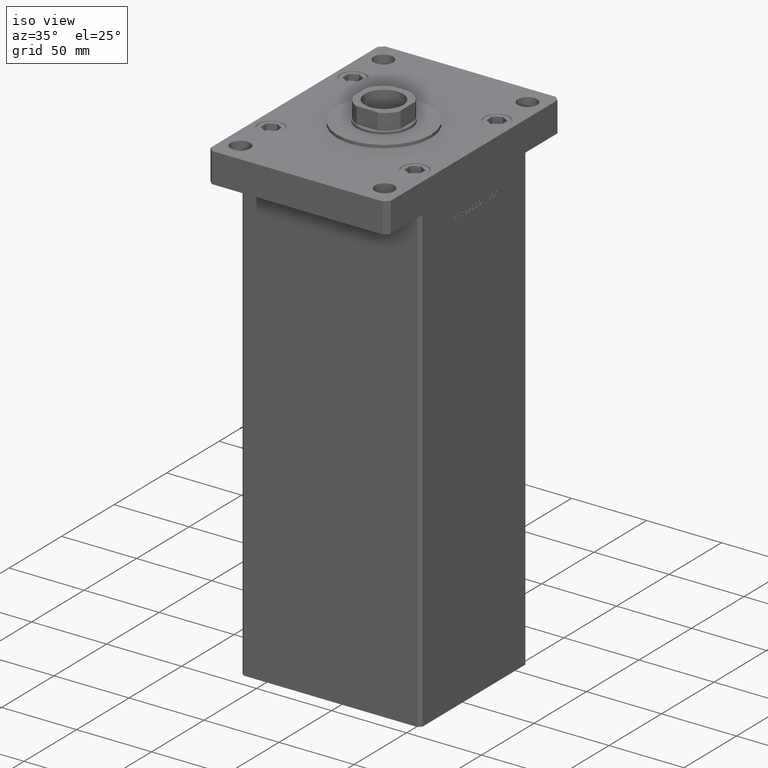
[diagram: clean part render]
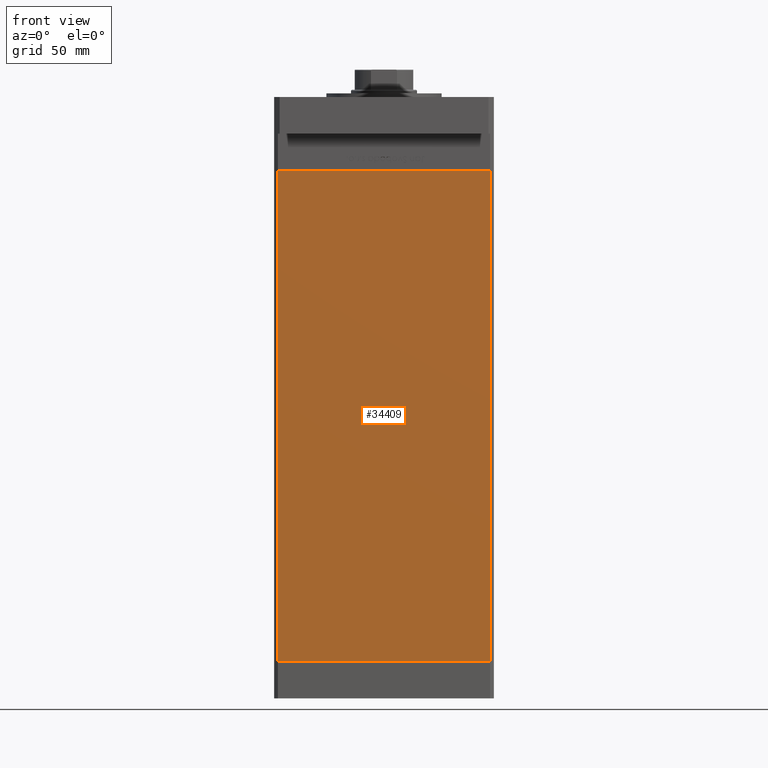
[diagram: tour spotlight — one face highlighted and labeled with its STEP entity id]
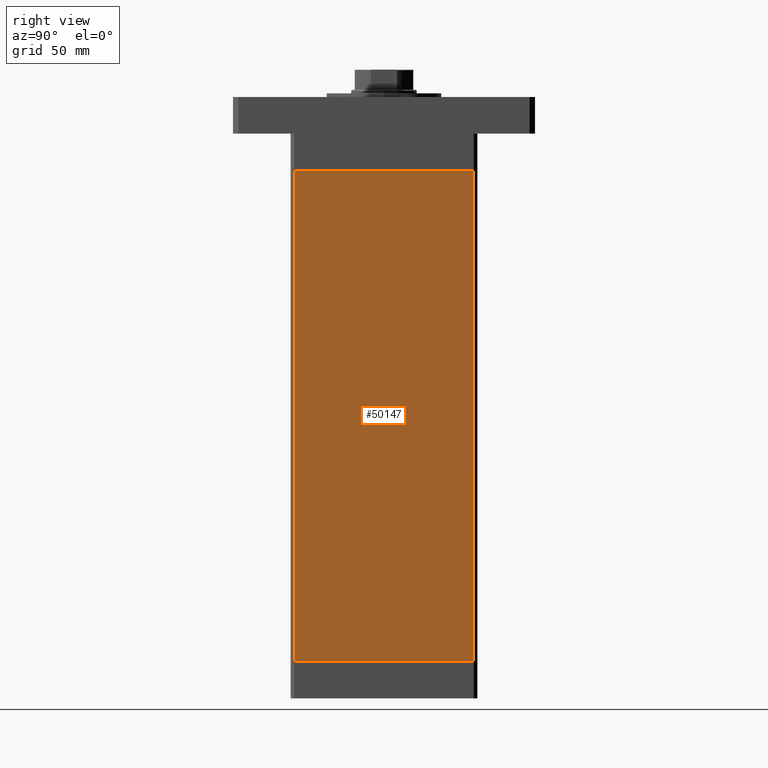
[diagram: tour spotlight — one face highlighted and labeled with its STEP entity id]
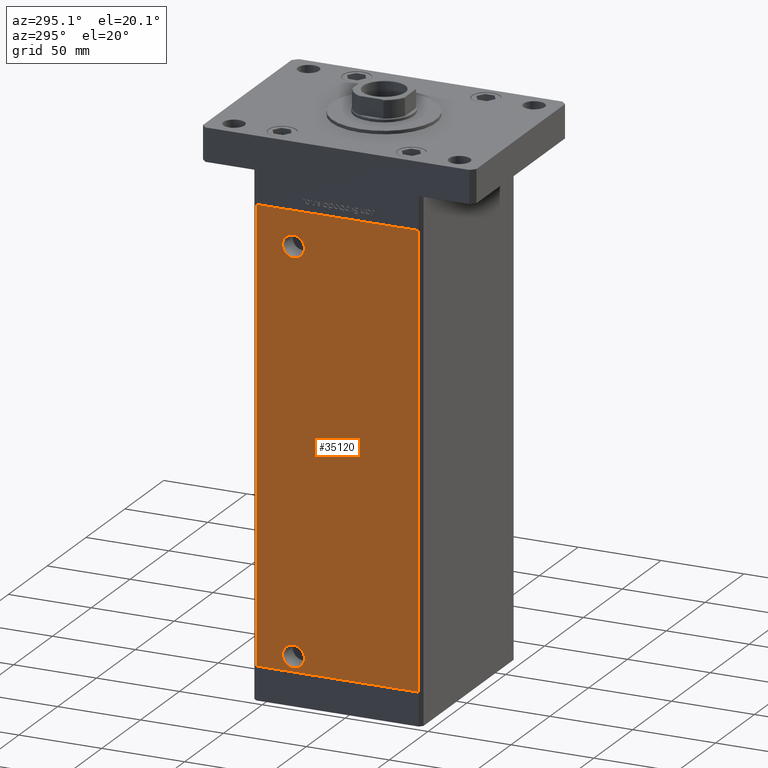
[diagram: tour spotlight — one face highlighted and labeled with its STEP entity id]
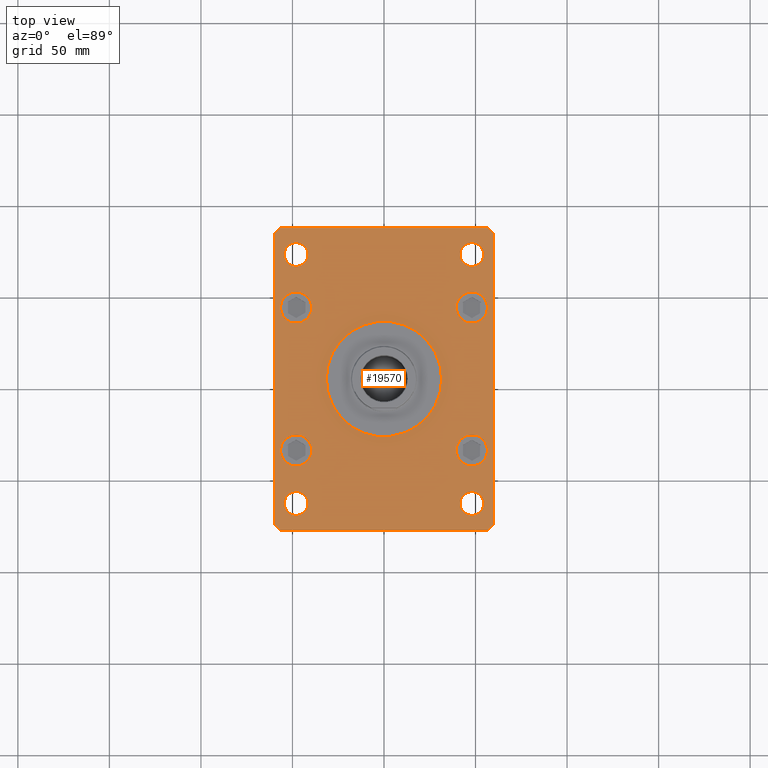
[diagram: tour spotlight — one face highlighted and labeled with its STEP entity id]
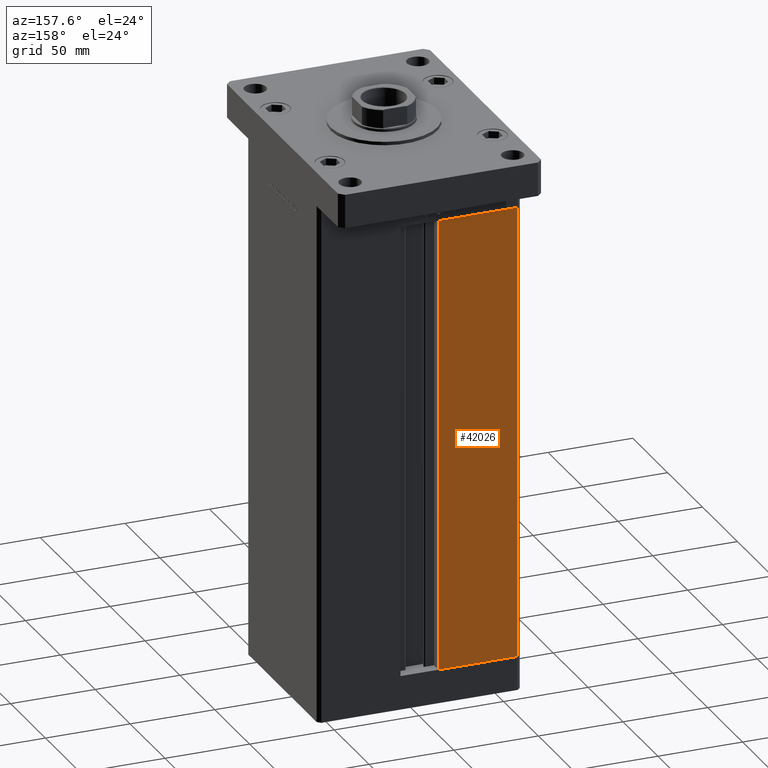
[diagram: tour spotlight — one face highlighted and labeled with its STEP entity id]
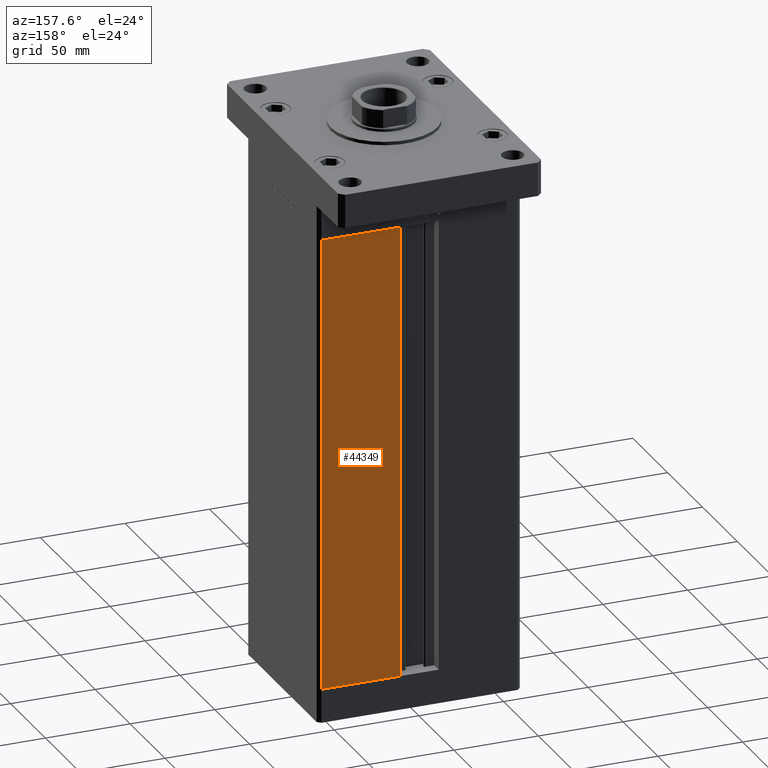
[diagram: tour spotlight — one face highlighted and labeled with its STEP entity id]
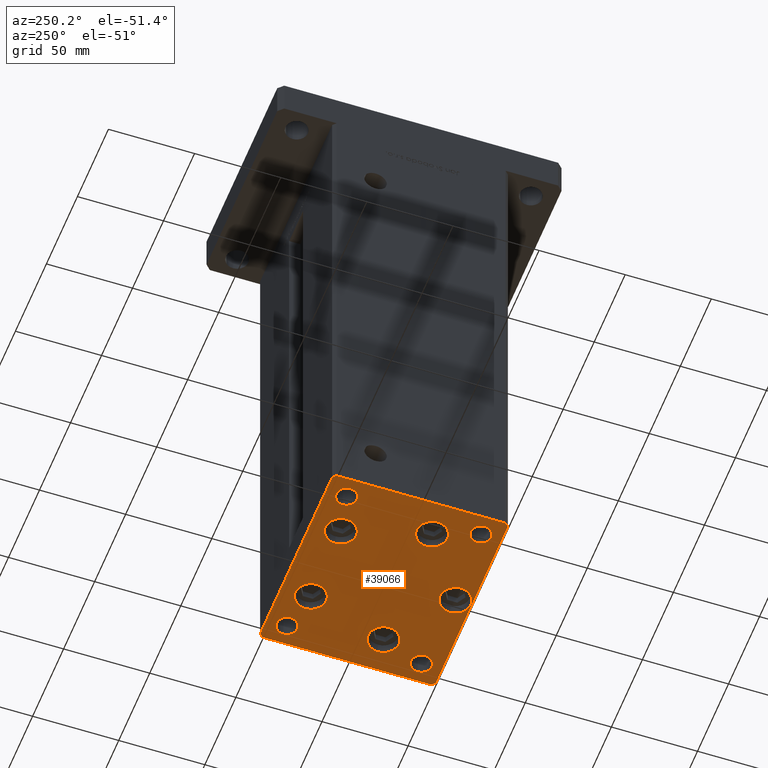
[diagram: tour spotlight — one face highlighted and labeled with its STEP entity id]
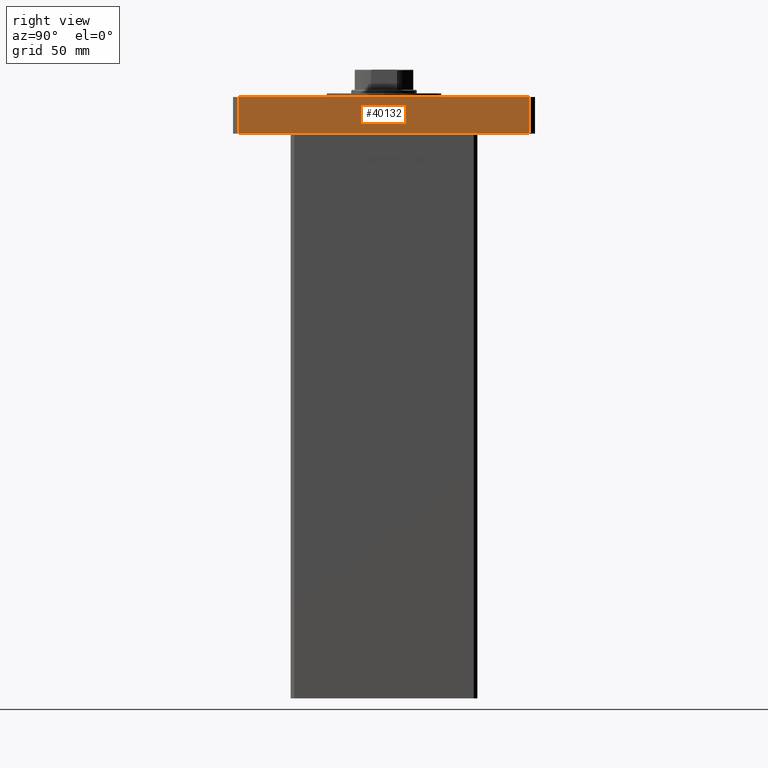
[diagram: tour spotlight — one face highlighted and labeled with its STEP entity id]
A machine part: a face-by-face anatomy tour. The part has 1311 B-rep faces; the first image is the clean iso view, then the 8 largest visible faces are spotlighted one at a time (largest first), each with its STEP entity span.

Face 1 — front view, entity #34409. In plain terms, the highlighted planar face has unit normal (0, 1, 0).
Definition (entity closure, byte-faithful):
#929 = EDGE_CURVE ( 'NONE', #19990, #13158, #34837, .T. ) ;
#10093 = DIRECTION ( 'NONE',  ( 1.000000000000000000, 0.000000000000000000, 0.000000000000000000 ) ) ;
#10351 = CARTESIAN_POINT ( 'NONE',  ( -57.99999999999997868, -51.00000000000000711, 0.000000000000000000 ) ) ;
#10465 = VERTEX_POINT ( 'NONE', #25866 ) ;
#13158 = VERTEX_POINT ( 'NONE', #40665 ) ;
#15494 = VECTOR ( 'NONE', #37706, 1000.000000000000000 ) ;
#17044 = VECTOR ( 'NONE', #33640, 1000.000000000000000 ) ;
#17133 = DIRECTION ( 'NONE',  ( 0.000000000000000000, -0.000000000000000000, 1.000000000000000000 ) ) ;
#17309 = CARTESIAN_POINT ( 'NONE',  ( 57.99999999999997868, -51.00000000000000711, 268.5000000000000000 ) ) ;
#18038 = VECTOR ( 'NONE', #46679, 1000.000000000000000 ) ;
#18613 = CARTESIAN_POINT ( 'NONE',  ( -57.99999999999997868, -51.00000000000000711, 268.5000000000000000 ) ) ;
#19340 = ORIENTED_EDGE ( 'NONE', *, *, #929, .T. ) ;
#19990 = VERTEX_POINT ( 'NONE', #27725 ) ;
#20451 = ORIENTED_EDGE ( 'NONE', *, *, #20453, .F. ) ;
#20453 = EDGE_CURVE ( 'NONE', #27574, #13158, #46185, .T. ) ;
#20525 = ORIENTED_EDGE ( 'NONE', *, *, #22177, .F. ) ;
#20949 = PLANE ( 'NONE',  #33879 ) ;
#21423 = CARTESIAN_POINT ( 'NONE',  ( 57.99999999999997868, -51.00000000000000711, 268.5000000000000000 ) ) ;
#22177 = EDGE_CURVE ( 'NONE', #10465, #27574, #51027, .T. ) ;
#23550 = EDGE_CURVE ( 'NONE', #10465, #19990, #37431, .T. ) ;
#24340 = EDGE_LOOP ( 'NONE', ( #19340, #20451, #20525, #35387 ) ) ;
#24401 = VECTOR ( 'NONE', #10093, 1000.000000000000000 ) ;
#25551 = FACE_OUTER_BOUND ( 'NONE', #24340, .T. ) ;
#25866 = CARTESIAN_POINT ( 'NONE',  ( -57.99999999999997868, -51.00000000000000711, 268.5000000000000000 ) ) ;
#27574 = VERTEX_POINT ( 'NONE', #21423 ) ;
#27725 = CARTESIAN_POINT ( 'NONE',  ( -57.99999999999997868, -51.00000000000000711, 0.000000000000000000 ) ) ;
#33640 = DIRECTION ( 'NONE',  ( -0.000000000000000000, -0.000000000000000000, -1.000000000000000000 ) ) ;
#33879 = AXIS2_PLACEMENT_3D ( 'NONE', #50892, #50092, #17133 ) ;
#34409 = ADVANCED_FACE ( 'NONE', ( #25551 ), #20949, .F. ) ;
#34837 = LINE ( 'NONE', #10351, #24401 ) ;
#35387 = ORIENTED_EDGE ( 'NONE', *, *, #23550, .T. ) ;
#37431 = LINE ( 'NONE', #40522, #15494 ) ;
#37706 = DIRECTION ( 'NONE',  ( -0.000000000000000000, -0.000000000000000000, -1.000000000000000000 ) ) ;
#40522 = CARTESIAN_POINT ( 'NONE',  ( -57.99999999999997868, -51.00000000000000711, 268.5000000000000000 ) ) ;
#40665 = CARTESIAN_POINT ( 'NONE',  ( 57.99999999999997868, -51.00000000000000711, 0.000000000000000000 ) ) ;
#46185 = LINE ( 'NONE', #17309, #17044 ) ;
#46679 = DIRECTION ( 'NONE',  ( 1.000000000000000000, 0.000000000000000000, 0.000000000000000000 ) ) ;
#50092 = DIRECTION ( 'NONE',  ( 0.000000000000000000, 1.000000000000000000, 0.000000000000000000 ) ) ;
#50892 = CARTESIAN_POINT ( 'NONE',  ( -57.99999999999997868, -51.00000000000000711, 268.5000000000000000 ) ) ;
#51027 = LINE ( 'NONE', #18613, #18038 ) ;

Face 2 — right view, entity #50147. In plain terms, the highlighted planar face has unit normal (1, -0, 0).
Definition (entity closure, byte-faithful):
#1686 = VECTOR ( 'NONE', #32620, 1000.000000000000000 ) ;
#1807 = FACE_OUTER_BOUND ( 'NONE', #8026, .T. ) ;
#5684 = ORIENTED_EDGE ( 'NONE', *, *, #17217, .F. ) ;
#5728 = ORIENTED_EDGE ( 'NONE', *, *, #28248, .T. ) ;
#6168 = DIRECTION ( 'NONE',  ( 1.000000000000000000, -2.832201593431521726E-16, 0.000000000000000000 ) ) ;
#6521 = LINE ( 'NONE', #23096, #1686 ) ;
#8026 = EDGE_LOOP ( 'NONE', ( #17170, #5684, #5728, #25457 ) ) ;
#12484 = VECTOR ( 'NONE', #13351, 1000.000000000000000 ) ;
#13351 = DIRECTION ( 'NONE',  ( -0.000000000000000000, -0.000000000000000000, -1.000000000000000000 ) ) ;
#17170 = ORIENTED_EDGE ( 'NONE', *, *, #31258, .F. ) ;
#17217 = EDGE_CURVE ( 'NONE', #49131, #27423, #17802, .T. ) ;
#17802 = LINE ( 'NONE', #38475, #22169 ) ;
#18404 = PLANE ( 'NONE',  #44751 ) ;
#18509 = LINE ( 'NONE', #51737, #12484 ) ;
#22169 = VECTOR ( 'NONE', #50223, 1000.000000000000000 ) ;
#22744 = DIRECTION ( 'NONE',  ( 2.832201593431521726E-16, 1.000000000000000000, 0.000000000000000000 ) ) ;
#23096 = CARTESIAN_POINT ( 'NONE',  ( 60.00000000000001421, 49.00000000000000000, 0.000000000000000000 ) ) ;
#24566 = CARTESIAN_POINT ( 'NONE',  ( 59.99999999999998579, -49.00000000000000000, 0.000000000000000000 ) ) ;
#24830 = CARTESIAN_POINT ( 'NONE',  ( 60.00000000000001421, 49.00000000000000000, 268.5000000000000000 ) ) ;
#25457 = ORIENTED_EDGE ( 'NONE', *, *, #44289, .T. ) ;
#27423 = VERTEX_POINT ( 'NONE', #44081 ) ;
#28248 = EDGE_CURVE ( 'NONE', #49131, #29817, #46858, .T. ) ;
#29817 = VERTEX_POINT ( 'NONE', #47818 ) ;
#31258 = EDGE_CURVE ( 'NONE', #27423, #49136, #6521, .T. ) ;
#32152 = VECTOR ( 'NONE', #43026, 1000.000000000000000 ) ;
#32620 = DIRECTION ( 'NONE',  ( -2.832201593431521726E-16, -1.000000000000000000, 0.000000000000000000 ) ) ;
#33924 = CARTESIAN_POINT ( 'NONE',  ( 60.00000000000001421, 49.00000000000000000, 268.5000000000000000 ) ) ;
#38475 = CARTESIAN_POINT ( 'NONE',  ( 60.00000000000001421, 49.00000000000000000, 268.5000000000000000 ) ) ;
#43026 = DIRECTION ( 'NONE',  ( -2.832201593431521726E-16, -1.000000000000000000, 0.000000000000000000 ) ) ;
#44081 = CARTESIAN_POINT ( 'NONE',  ( 60.00000000000001421, 49.00000000000000000, 0.000000000000000000 ) ) ;
#44289 = EDGE_CURVE ( 'NONE', #29817, #49136, #18509, .T. ) ;
#44751 = AXIS2_PLACEMENT_3D ( 'NONE', #33924, #6168, #22744 ) ;
#46858 = LINE ( 'NONE', #50946, #32152 ) ;
#47818 = CARTESIAN_POINT ( 'NONE',  ( 59.99999999999998579, -49.00000000000000000, 268.5000000000000000 ) ) ;
#49131 = VERTEX_POINT ( 'NONE', #24830 ) ;
#49136 = VERTEX_POINT ( 'NONE', #24566 ) ;
#50147 = ADVANCED_FACE ( 'NONE', ( #1807 ), #18404, .T. ) ;
#50223 = DIRECTION ( 'NONE',  ( -0.000000000000000000, -0.000000000000000000, -1.000000000000000000 ) ) ;
#50946 = CARTESIAN_POINT ( 'NONE',  ( 60.00000000000001421, 49.00000000000000000, 268.5000000000000000 ) ) ;
#51737 = CARTESIAN_POINT ( 'NONE',  ( 59.99999999999998579, -49.00000000000000000, 268.5000000000000000 ) ) ;

Face 3 — auxiliary view, entity #35120. In plain terms, the highlighted planar face has unit normal (1, 0, 0).
Definition (entity closure, byte-faithful):
#84 = CARTESIAN_POINT ( 'NONE',  ( -60.00000000000001421, 49.00000000000000000, 268.5000000000000000 ) ) ;
#561 = VERTEX_POINT ( 'NONE', #30540 ) ;
#2476 = CIRCLE ( 'NONE', #48578, 6.580000000000002736 ) ;
#3036 = PLANE ( 'NONE',  #7875 ) ;
#3170 = DIRECTION ( 'NONE',  ( -1.000000000000000000, -2.275047181608927644E-16, 0.000000000000000000 ) ) ;
#5656 = DIRECTION ( 'NONE',  ( -1.000000000000000000, -2.275047181608927644E-16, 0.000000000000000000 ) ) ;
#6930 = EDGE_CURVE ( 'NONE', #561, #45726, #28827, .T. ) ;
#7875 = AXIS2_PLACEMENT_3D ( 'NONE', #37278, #28324, #44949 ) ;
#8040 = LINE ( 'NONE', #45603, #17354 ) ;
#8308 = DIRECTION ( 'NONE',  ( 2.832201593431521726E-16, -1.000000000000000000, 0.000000000000000000 ) ) ;
#10068 = CARTESIAN_POINT ( 'NONE',  ( -60.00000000000001421, 49.00000000000000000, 268.5000000000000000 ) ) ;
#11214 = VECTOR ( 'NONE', #21437, 1000.000000000000000 ) ;
#11452 = FACE_OUTER_BOUND ( 'NONE', #21562, .T. ) ;
#13568 = CARTESIAN_POINT ( 'NONE',  ( -60.00000000000000711, 19.91999999999996263, 247.5000000000000000 ) ) ;
#13657 = CARTESIAN_POINT ( 'NONE',  ( -60.00000000000000711, 26.50000000000000711, 247.5000000000000000 ) ) ;
#14173 = DIRECTION ( 'NONE',  ( 0.000000000000000000, -1.000000000000000000, 0.000000000000000000 ) ) ;
#14621 = ORIENTED_EDGE ( 'NONE', *, *, #25034, .F. ) ;
#14641 = ORIENTED_EDGE ( 'NONE', *, *, #6930, .F. ) ;
#15146 = DIRECTION ( 'NONE',  ( 0.000000000000000000, -1.000000000000000000, 0.000000000000000000 ) ) ;
#17354 = VECTOR ( 'NONE', #8308, 1000.000000000000000 ) ;
#17878 = CARTESIAN_POINT ( 'NONE',  ( -60.00000000000001421, 49.00000000000000000, 0.000000000000000000 ) ) ;
#18014 = CARTESIAN_POINT ( 'NONE',  ( -60.00000000000001421, 49.00000000000000000, 0.000000000000000000 ) ) ;
#18204 = VECTOR ( 'NONE', #43261, 1000.000000000000000 ) ;
#19759 = CARTESIAN_POINT ( 'NONE',  ( -60.00000000000000711, 19.91999999999999815, 9.000000000000000000 ) ) ;
#20687 = FACE_BOUND ( 'NONE', #39518, .T. ) ;
#20773 = CIRCLE ( 'NONE', #34666, 6.580000000000002736 ) ;
#21437 = DIRECTION ( 'NONE',  ( -0.000000000000000000, -0.000000000000000000, -1.000000000000000000 ) ) ;
#21467 = EDGE_CURVE ( 'NONE', #32894, #40858, #8040, .T. ) ;
#21562 = EDGE_LOOP ( 'NONE', ( #41364, #53068, #44793, #46575 ) ) ;
#21663 = CARTESIAN_POINT ( 'NONE',  ( -59.99999999999998579, -49.00000000000000000, 268.5000000000000000 ) ) ;
#22231 = DIRECTION ( 'NONE',  ( 0.000000000000000000, -1.000000000000000000, 0.000000000000000000 ) ) ;
#22493 = CARTESIAN_POINT ( 'NONE',  ( -60.00000000000000711, 26.50000000000000000, 9.000000000000000000 ) ) ;
#22747 = CARTESIAN_POINT ( 'NONE',  ( -60.00000000000000711, 26.50000000000000000, 9.000000000000000000 ) ) ;
#23375 = LINE ( 'NONE', #10068, #18204 ) ;
#24647 = CIRCLE ( 'NONE', #29868, 6.580000000000044480 ) ;
#25034 = EDGE_CURVE ( 'NONE', #30746, #47915, #2476, .T. ) ;
#25511 = LINE ( 'NONE', #33148, #11214 ) ;
#25976 = EDGE_LOOP ( 'NONE', ( #14621, #38521 ) ) ;
#26305 = EDGE_CURVE ( 'NONE', #40858, #27594, #25511, .T. ) ;
#26405 = EDGE_CURVE ( 'NONE', #47915, #30746, #20773, .T. ) ;
#27447 = EDGE_CURVE ( 'NONE', #32894, #31908, #23375, .T. ) ;
#27594 = VERTEX_POINT ( 'NONE', #29841 ) ;
#28324 = DIRECTION ( 'NONE',  ( 1.000000000000000000, 2.832201593431521726E-16, -0.000000000000000000 ) ) ;
#28827 = CIRCLE ( 'NONE', #48838, 6.580000000000044480 ) ;
#29841 = CARTESIAN_POINT ( 'NONE',  ( -59.99999999999998579, -49.00000000000000000, 0.000000000000000000 ) ) ;
#29868 = AXIS2_PLACEMENT_3D ( 'NONE', #51476, #46855, #14173 ) ;
#30540 = CARTESIAN_POINT ( 'NONE',  ( -60.00000000000000711, 33.08000000000005514, 247.5000000000000000 ) ) ;
#30746 = VERTEX_POINT ( 'NONE', #19759 ) ;
#31908 = VERTEX_POINT ( 'NONE', #18014 ) ;
#32894 = VERTEX_POINT ( 'NONE', #84 ) ;
#33148 = CARTESIAN_POINT ( 'NONE',  ( -59.99999999999998579, -49.00000000000000000, 268.5000000000000000 ) ) ;
#34666 = AXIS2_PLACEMENT_3D ( 'NONE', #22493, #5656, #22231 ) ;
#35120 = ADVANCED_FACE ( 'NONE', ( #36750, #20687, #11452 ), #3036, .F. ) ;
#36750 = FACE_BOUND ( 'NONE', #25976, .T. ) ;
#37278 = CARTESIAN_POINT ( 'NONE',  ( -60.00000000000001421, 49.00000000000000000, 268.5000000000000000 ) ) ;
#38521 = ORIENTED_EDGE ( 'NONE', *, *, #26405, .F. ) ;
#39518 = EDGE_LOOP ( 'NONE', ( #43748, #14641 ) ) ;
#40858 = VERTEX_POINT ( 'NONE', #21663 ) ;
#41364 = ORIENTED_EDGE ( 'NONE', *, *, #46784, .T. ) ;
#41616 = CARTESIAN_POINT ( 'NONE',  ( -60.00000000000000711, 33.08000000000000540, 9.000000000000000000 ) ) ;
#42510 = DIRECTION ( 'NONE',  ( -1.000000000000000000, -2.275047181608927644E-16, 0.000000000000000000 ) ) ;
#43059 = DIRECTION ( 'NONE',  ( 0.000000000000000000, -1.000000000000000000, 0.000000000000000000 ) ) ;
#43261 = DIRECTION ( 'NONE',  ( -0.000000000000000000, -0.000000000000000000, -1.000000000000000000 ) ) ;
#43748 = ORIENTED_EDGE ( 'NONE', *, *, #47700, .F. ) ;
#43758 = VECTOR ( 'NONE', #46480, 1000.000000000000000 ) ;
#44793 = ORIENTED_EDGE ( 'NONE', *, *, #21467, .F. ) ;
#44949 = DIRECTION ( 'NONE',  ( -2.832201593431521726E-16, 1.000000000000000000, 0.000000000000000000 ) ) ;
#45603 = CARTESIAN_POINT ( 'NONE',  ( -60.00000000000001421, 49.00000000000000000, 268.5000000000000000 ) ) ;
#45726 = VERTEX_POINT ( 'NONE', #13568 ) ;
#46480 = DIRECTION ( 'NONE',  ( 2.832201593431521726E-16, -1.000000000000000000, 0.000000000000000000 ) ) ;
#46575 = ORIENTED_EDGE ( 'NONE', *, *, #27447, .T. ) ;
#46784 = EDGE_CURVE ( 'NONE', #31908, #27594, #51363, .T. ) ;
#46855 = DIRECTION ( 'NONE',  ( -1.000000000000000000, -2.275047181608927644E-16, 0.000000000000000000 ) ) ;
#47700 = EDGE_CURVE ( 'NONE', #45726, #561, #24647, .T. ) ;
#47915 = VERTEX_POINT ( 'NONE', #41616 ) ;
#48578 = AXIS2_PLACEMENT_3D ( 'NONE', #22747, #3170, #15146 ) ;
#48838 = AXIS2_PLACEMENT_3D ( 'NONE', #13657, #42510, #43059 ) ;
#51363 = LINE ( 'NONE', #17878, #43758 ) ;
#51476 = CARTESIAN_POINT ( 'NONE',  ( -60.00000000000000711, 26.50000000000000711, 247.5000000000000000 ) ) ;
#53068 = ORIENTED_EDGE ( 'NONE', *, *, #26305, .F. ) ;

Face 4 — top view, entity #19570. In plain terms, the highlighted planar face has unit normal (0, 0, 1).
Definition (entity closure, byte-faithful):
#243 = DIRECTION ( 'NONE',  ( 0.7071067811865474617, -0.7071067811865474617, 0.000000000000000000 ) ) ;
#348 = FACE_BOUND ( 'NONE', #34222, .T. ) ;
#746 = AXIS2_PLACEMENT_3D ( 'NONE', #5230, #13646, #25357 ) ;
#762 = CARTESIAN_POINT ( 'NONE',  ( -39.50000000000000711, -39.00000000000000000, 20.00000000000000000 ) ) ;
#1691 = CIRCLE ( 'NONE', #6056, 31.50000000000000000 ) ;
#1775 = CARTESIAN_POINT ( 'NONE',  ( 60.00000000000000711, 79.50000000000001421, 20.00000000000000000 ) ) ;
#2089 = DIRECTION ( 'NONE',  ( 0.000000000000000000, 0.000000000000000000, 1.000000000000000000 ) ) ;
#2377 = VERTEX_POINT ( 'NONE', #35071 ) ;
#2571 = CARTESIAN_POINT ( 'NONE',  ( 57.00000000000002132, 82.50000000000002842, 20.00000000000000000 ) ) ;
#2812 = EDGE_CURVE ( 'NONE', #14487, #23125, #14809, .T. ) ;
#2834 = DIRECTION ( 'NONE',  ( 1.000000000000000000, 0.000000000000000000, 0.000000000000000000 ) ) ;
#2854 = DIRECTION ( 'NONE',  ( -1.000000000000000000, -2.434699615406043739E-16, 0.000000000000000000 ) ) ;
#2891 = CARTESIAN_POINT ( 'NONE',  ( 0.000000000000000000, 0.000000000000000000, 20.00000000000000000 ) ) ;
#2931 = ORIENTED_EDGE ( 'NONE', *, *, #33606, .T. ) ;
#3035 = EDGE_CURVE ( 'NONE', #53358, #39784, #27814, .T. ) ;
#3099 = VERTEX_POINT ( 'NONE', #23708 ) ;
#3213 = ORIENTED_EDGE ( 'NONE', *, *, #23104, .F. ) ;
#3794 = VERTEX_POINT ( 'NONE', #52089 ) ;
#3999 = VERTEX_POINT ( 'NONE', #27228 ) ;
#4648 = EDGE_CURVE ( 'NONE', #23557, #3999, #40913, .T. ) ;
#4745 = VERTEX_POINT ( 'NONE', #14062 ) ;
#5230 = CARTESIAN_POINT ( 'NONE',  ( 48.00000000000000000, -38.99999999999999289, 20.00000000000000000 ) ) ;
#5584 = AXIS2_PLACEMENT_3D ( 'NONE', #43504, #43240, #5964 ) ;
#5964 = DIRECTION ( 'NONE',  ( 1.000000000000000000, 0.000000000000000000, 0.000000000000000000 ) ) ;
#6002 = DIRECTION ( 'NONE',  ( 0.000000000000000000, 0.000000000000000000, 1.000000000000000000 ) ) ;
#6056 = AXIS2_PLACEMENT_3D ( 'NONE', #53400, #16371, #32950 ) ;
#6221 = ORIENTED_EDGE ( 'NONE', *, *, #30127, .F. ) ;
#6467 = AXIS2_PLACEMENT_3D ( 'NONE', #44466, #44744, #12324 ) ;
#6856 = CARTESIAN_POINT ( 'NONE',  ( -39.50000000000002132, 39.00000000000000000, 20.00000000000000000 ) ) ;
#7127 = DIRECTION ( 'NONE',  ( 1.000000000000000000, 0.000000000000000000, 0.000000000000000000 ) ) ;
#7662 = CARTESIAN_POINT ( 'NONE',  ( 41.49999999999999289, 67.99999999999998579, 20.00000000000000000 ) ) ;
#7891 = LINE ( 'NONE', #41343, #44631 ) ;
#8104 = AXIS2_PLACEMENT_3D ( 'NONE', #25809, #13029, #29623 ) ;
#8466 = ORIENTED_EDGE ( 'NONE', *, *, #50974, .T. ) ;
#8529 = VERTEX_POINT ( 'NONE', #44562 ) ;
#8603 = ORIENTED_EDGE ( 'NONE', *, *, #32122, .F. ) ;
#8604 = CARTESIAN_POINT ( 'NONE',  ( 31.50000000000000000, 3.857637417314162689E-15, 20.00000000000000000 ) ) ;
#8801 = EDGE_CURVE ( 'NONE', #2377, #3099, #44219, .T. ) ;
#8846 = EDGE_CURVE ( 'NONE', #8529, #26255, #35769, .T. ) ;
#9464 = DIRECTION ( 'NONE',  ( 1.000000000000000000, 9.738798461624180871E-16, 0.000000000000000000 ) ) ;
#9515 = DIRECTION ( 'NONE',  ( 4.364084216293856438E-17, 1.000000000000000000, 0.000000000000000000 ) ) ;
#9565 = VECTOR ( 'NONE', #16998, 1000.000000000000114 ) ;
#10282 = ORIENTED_EDGE ( 'NONE', *, *, #17830, .F. ) ;
#10302 = VERTEX_POINT ( 'NONE', #37597 ) ;
#10859 = EDGE_CURVE ( 'NONE', #24872, #38779, #17637, .T. ) ;
#11248 = DIRECTION ( 'NONE',  ( 0.000000000000000000, 0.000000000000000000, 1.000000000000000000 ) ) ;
#11279 = DIRECTION ( 'NONE',  ( 2.618450529776312260E-16, -1.000000000000000000, 0.000000000000000000 ) ) ;
#11335 = CIRCLE ( 'NONE', #41730, 6.500000000000005329 ) ;
#11637 = EDGE_LOOP ( 'NONE', ( #19951, #47261 ) ) ;
#11814 = ORIENTED_EDGE ( 'NONE', *, *, #2812, .F. ) ;
#11993 = CIRCLE ( 'NONE', #48534, 6.500000000000005329 ) ;
#12324 = DIRECTION ( 'NONE',  ( 1.000000000000000000, 0.000000000000000000, 0.000000000000000000 ) ) ;
#12851 = EDGE_CURVE ( 'NONE', #26206, #3794, #13551, .T. ) ;
#13029 = DIRECTION ( 'NONE',  ( 0.000000000000000000, 0.000000000000000000, 1.000000000000000000 ) ) ;
#13180 = AXIS2_PLACEMENT_3D ( 'NONE', #2891, #20290, #36881 ) ;
#13428 = CARTESIAN_POINT ( 'NONE',  ( -57.00000000000003553, 82.50000000000000000, 20.00000000000000000 ) ) ;
#13457 = DIRECTION ( 'NONE',  ( 0.7071067811865459074, 0.7071067811865491270, 0.000000000000000000 ) ) ;
#13551 = LINE ( 'NONE', #30136, #50718 ) ;
#13646 = DIRECTION ( 'NONE',  ( 0.000000000000000000, 0.000000000000000000, 1.000000000000000000 ) ) ;
#14011 = EDGE_LOOP ( 'NONE', ( #3213, #38113 ) ) ;
#14062 = CARTESIAN_POINT ( 'NONE',  ( 41.49999999999996447, -68.00000000000001421, 20.00000000000000000 ) ) ;
#14100 = DIRECTION ( 'NONE',  ( 0.000000000000000000, 0.000000000000000000, 1.000000000000000000 ) ) ;
#14487 = VERTEX_POINT ( 'NONE', #26944 ) ;
#14809 = CIRCLE ( 'NONE', #37368, 8.499999999999992895 ) ;
#15023 = DIRECTION ( 'NONE',  ( 0.000000000000000000, 0.000000000000000000, 1.000000000000000000 ) ) ;
#15027 = VECTOR ( 'NONE', #18373, 999.9999999999998863 ) ;
#15910 = VERTEX_POINT ( 'NONE', #27419 ) ;
#16371 = DIRECTION ( 'NONE',  ( 0.000000000000000000, 0.000000000000000000, 1.000000000000000000 ) ) ;
#16659 = CIRCLE ( 'NONE', #13180, 31.50000000000000000 ) ;
#16998 = DIRECTION ( 'NONE',  ( -0.7071067811865474617, -0.7071067811865474617, 0.000000000000000000 ) ) ;
#17275 = VECTOR ( 'NONE', #9515, 1000.000000000000000 ) ;
#17637 = CIRCLE ( 'NONE', #8104, 6.500000000000005329 ) ;
#17765 = EDGE_CURVE ( 'NONE', #39784, #53358, #44772, .T. ) ;
#17787 = ORIENTED_EDGE ( 'NONE', *, *, #33877, .F. ) ;
#17830 = EDGE_CURVE ( 'NONE', #32174, #21333, #28259, .T. ) ;
#18373 = DIRECTION ( 'NONE',  ( -0.7071067811865435759, 0.7071067811865515695, 0.000000000000000000 ) ) ;
#18607 = ORIENTED_EDGE ( 'NONE', *, *, #39755, .F. ) ;
#18618 = EDGE_CURVE ( 'NONE', #41620, #15910, #48206, .T. ) ;
#19073 = DIRECTION ( 'NONE',  ( 1.000000000000000000, 0.000000000000000000, 0.000000000000000000 ) ) ;
#19079 = DIRECTION ( 'NONE',  ( 1.000000000000000000, 0.000000000000000000, 0.000000000000000000 ) ) ;
#19362 = CARTESIAN_POINT ( 'NONE',  ( -48.00000000000000000, 68.00000000000001421, 20.00000000000000000 ) ) ;
#19363 = DIRECTION ( 'NONE',  ( 1.000000000000000000, 0.000000000000000000, 0.000000000000000000 ) ) ;
#19366 = DIRECTION ( 'NONE',  ( 1.000000000000000000, 0.000000000000000000, -0.000000000000000000 ) ) ;
#19570 = ADVANCED_FACE ( 'NONE', ( #25896, #37631, #348, #33548, #29714, #26969, #31328, #27520, #48251, #52316 ), #35148, .T. ) ;
#19589 = AXIS2_PLACEMENT_3D ( 'NONE', #20492, #11248, #27837 ) ;
#19951 = ORIENTED_EDGE ( 'NONE', *, *, #3035, .F. ) ;
#20290 = DIRECTION ( 'NONE',  ( 0.000000000000000000, 0.000000000000000000, 1.000000000000000000 ) ) ;
#20477 = DIRECTION ( 'NONE',  ( 1.000000000000000000, 0.000000000000000000, 0.000000000000000000 ) ) ;
#20492 = CARTESIAN_POINT ( 'NONE',  ( 48.00000000000000000, 67.99999999999998579, 20.00000000000000000 ) ) ;
#20711 = ORIENTED_EDGE ( 'NONE', *, *, #42265, .T. ) ;
#20911 = AXIS2_PLACEMENT_3D ( 'NONE', #51366, #2089, #34731 ) ;
#21333 = VERTEX_POINT ( 'NONE', #48354 ) ;
#21764 = LINE ( 'NONE', #29929, #17275 ) ;
#22124 = VERTEX_POINT ( 'NONE', #42306 ) ;
#22346 = EDGE_CURVE ( 'NONE', #47805, #26392, #40627, .T. ) ;
#23036 = AXIS2_PLACEMENT_3D ( 'NONE', #27296, #51829, #31104 ) ;
#23104 = EDGE_CURVE ( 'NONE', #38779, #24872, #11993, .T. ) ;
#23121 = ORIENTED_EDGE ( 'NONE', *, *, #36508, .F. ) ;
#23125 = VERTEX_POINT ( 'NONE', #6856 ) ;
#23459 = AXIS2_PLACEMENT_3D ( 'NONE', #31323, #52037, #19079 ) ;
#23495 = CARTESIAN_POINT ( 'NONE',  ( -48.00000000000001421, 39.00000000000000000, 20.00000000000000000 ) ) ;
#23557 = VERTEX_POINT ( 'NONE', #33872 ) ;
#23708 = CARTESIAN_POINT ( 'NONE',  ( -59.99999999999998579, -79.50000000000002842, 20.00000000000000000 ) ) ;
#24825 = EDGE_CURVE ( 'NONE', #38440, #40662, #21764, .T. ) ;
#24872 = VERTEX_POINT ( 'NONE', #47911 ) ;
#24983 = ORIENTED_EDGE ( 'NONE', *, *, #24825, .T. ) ;
#25275 = EDGE_CURVE ( 'NONE', #3999, #23557, #31128, .T. ) ;
#25357 = DIRECTION ( 'NONE',  ( 1.000000000000000000, 0.000000000000000000, 0.000000000000000000 ) ) ;
#25809 = CARTESIAN_POINT ( 'NONE',  ( -48.00000000000000000, 68.00000000000001421, 20.00000000000000000 ) ) ;
#25896 = FACE_BOUND ( 'NONE', #28230, .T. ) ;
#26128 = CARTESIAN_POINT ( 'NONE',  ( 56.49999999999999289, -38.99999999999999289, 20.00000000000000000 ) ) ;
#26206 = VERTEX_POINT ( 'NONE', #51231 ) ;
#26255 = VERTEX_POINT ( 'NONE', #41849 ) ;
#26392 = VERTEX_POINT ( 'NONE', #42923 ) ;
#26603 = DIRECTION ( 'NONE',  ( 1.000000000000000000, 0.000000000000000000, 0.000000000000000000 ) ) ;
#26781 = ORIENTED_EDGE ( 'NONE', *, *, #8801, .T. ) ;
#26944 = CARTESIAN_POINT ( 'NONE',  ( -56.50000000000000711, 39.00000000000000000, 20.00000000000000000 ) ) ;
#26969 = FACE_OUTER_BOUND ( 'NONE', #27496, .T. ) ;
#27049 = CARTESIAN_POINT ( 'NONE',  ( -60.00000000000002842, 79.50000000000001421, 20.00000000000000000 ) ) ;
#27148 = CARTESIAN_POINT ( 'NONE',  ( 60.00000000000000711, 79.50000000000001421, 20.00000000000000000 ) ) ;
#27219 = EDGE_CURVE ( 'NONE', #41736, #10302, #1691, .T. ) ;
#27228 = CARTESIAN_POINT ( 'NONE',  ( -54.49999999999997868, -68.00000000000001421, 20.00000000000000000 ) ) ;
#27296 = CARTESIAN_POINT ( 'NONE',  ( -48.00000000000000711, -39.00000000000000000, 20.00000000000000000 ) ) ;
#27419 = CARTESIAN_POINT ( 'NONE',  ( 39.50000000000000711, 38.99999999999999289, 20.00000000000000000 ) ) ;
#27472 = ORIENTED_EDGE ( 'NONE', *, *, #4648, .F. ) ;
#27496 = EDGE_LOOP ( 'NONE', ( #51406, #8466, #24983, #33393, #28735, #2931, #26781, #20711 ) ) ;
#27520 = FACE_BOUND ( 'NONE', #11637, .T. ) ;
#27753 = CIRCLE ( 'NONE', #41657, 6.500000000000005329 ) ;
#27814 = CIRCLE ( 'NONE', #23459, 8.500000000000000000 ) ;
#27837 = DIRECTION ( 'NONE',  ( 1.000000000000000000, 0.000000000000000000, 0.000000000000000000 ) ) ;
#28230 = EDGE_LOOP ( 'NONE', ( #48278, #40356 ) ) ;
#28259 = CIRCLE ( 'NONE', #19589, 6.500000000000005329 ) ;
#28601 = EDGE_LOOP ( 'NONE', ( #10282, #17787 ) ) ;
#28735 = ORIENTED_EDGE ( 'NONE', *, *, #8846, .T. ) ;
#29623 = DIRECTION ( 'NONE',  ( 1.000000000000000000, 0.000000000000000000, 0.000000000000000000 ) ) ;
#29714 = FACE_BOUND ( 'NONE', #49002, .T. ) ;
#29929 = CARTESIAN_POINT ( 'NONE',  ( 60.00000000000000000, -79.49999999999990052, 20.00000000000000000 ) ) ;
#30127 = EDGE_CURVE ( 'NONE', #26392, #47805, #45106, .T. ) ;
#30136 = CARTESIAN_POINT ( 'NONE',  ( -56.99999999999999289, -82.50000000000001421, 20.00000000000000000 ) ) ;
#30769 = EDGE_LOOP ( 'NONE', ( #11814, #32157 ) ) ;
#31056 = DIRECTION ( 'NONE',  ( 0.000000000000000000, 0.000000000000000000, 1.000000000000000000 ) ) ;
#31104 = DIRECTION ( 'NONE',  ( 1.000000000000000000, 0.000000000000000000, 0.000000000000000000 ) ) ;
#31128 = CIRCLE ( 'NONE', #42441, 6.500000000000005329 ) ;
#31323 = CARTESIAN_POINT ( 'NONE',  ( -48.00000000000000711, -39.00000000000000000, 20.00000000000000000 ) ) ;
#31328 = FACE_BOUND ( 'NONE', #28601, .T. ) ;
#32122 = EDGE_CURVE ( 'NONE', #4745, #22124, #27753, .T. ) ;
#32157 = ORIENTED_EDGE ( 'NONE', *, *, #48851, .F. ) ;
#32174 = VERTEX_POINT ( 'NONE', #7662 ) ;
#32539 = CIRCLE ( 'NONE', #5584, 8.499999999999992895 ) ;
#32950 = DIRECTION ( 'NONE',  ( 1.000000000000000000, 0.000000000000000000, 0.000000000000000000 ) ) ;
#33029 = DIRECTION ( 'NONE',  ( 1.000000000000000000, 0.000000000000000000, 0.000000000000000000 ) ) ;
#33393 = ORIENTED_EDGE ( 'NONE', *, *, #41963, .T. ) ;
#33548 = FACE_BOUND ( 'NONE', #14011, .T. ) ;
#33581 = LINE ( 'NONE', #13428, #9565 ) ;
#33606 = EDGE_CURVE ( 'NONE', #26255, #2377, #33581, .T. ) ;
#33872 = CARTESIAN_POINT ( 'NONE',  ( -41.49999999999996447, -68.00000000000001421, 20.00000000000000000 ) ) ;
#33877 = EDGE_CURVE ( 'NONE', #21333, #32174, #11335, .T. ) ;
#34129 = CARTESIAN_POINT ( 'NONE',  ( 57.00000000000000711, -82.49999999999990052, 20.00000000000000000 ) ) ;
#34222 = EDGE_LOOP ( 'NONE', ( #6221, #34446 ) ) ;
#34446 = ORIENTED_EDGE ( 'NONE', *, *, #22346, .F. ) ;
#34731 = DIRECTION ( 'NONE',  ( 1.000000000000000000, 0.000000000000000000, 0.000000000000000000 ) ) ;
#35071 = CARTESIAN_POINT ( 'NONE',  ( -60.00000000000002842, 79.50000000000001421, 20.00000000000000000 ) ) ;
#35148 = PLANE ( 'NONE',  #41216 ) ;
#35405 = AXIS2_PLACEMENT_3D ( 'NONE', #43276, #6002, #39181 ) ;
#35682 = CARTESIAN_POINT ( 'NONE',  ( 47.99999999999997158, -68.00000000000001421, 20.00000000000000000 ) ) ;
#35769 = LINE ( 'NONE', #2571, #44496 ) ;
#36382 = CARTESIAN_POINT ( 'NONE',  ( 56.49999999999999289, 38.99999999999999289, 20.00000000000000000 ) ) ;
#36508 = EDGE_CURVE ( 'NONE', #15910, #41620, #50543, .T. ) ;
#36881 = DIRECTION ( 'NONE',  ( 1.000000000000000000, 0.000000000000000000, 0.000000000000000000 ) ) ;
#36977 = CARTESIAN_POINT ( 'NONE',  ( -54.50000000000000711, 68.00000000000001421, 20.00000000000000000 ) ) ;
#37313 = CARTESIAN_POINT ( 'NONE',  ( -56.50000000000000711, -39.00000000000000000, 20.00000000000000000 ) ) ;
#37368 = AXIS2_PLACEMENT_3D ( 'NONE', #23495, #40105, #2834 ) ;
#37530 = VECTOR ( 'NONE', #11279, 1000.000000000000000 ) ;
#37597 = CARTESIAN_POINT ( 'NONE',  ( -31.50000000000000000, 0.000000000000000000, 20.00000000000000000 ) ) ;
#37631 = FACE_BOUND ( 'NONE', #30769, .T. ) ;
#37649 = CARTESIAN_POINT ( 'NONE',  ( 48.00000000000000000, 38.99999999999999289, 20.00000000000000000 ) ) ;
#38113 = ORIENTED_EDGE ( 'NONE', *, *, #10859, .F. ) ;
#38306 = AXIS2_PLACEMENT_3D ( 'NONE', #37649, #45041, #33029 ) ;
#38350 = EDGE_CURVE ( 'NONE', #10302, #41736, #16659, .T. ) ;
#38440 = VERTEX_POINT ( 'NONE', #46135 ) ;
#38779 = VERTEX_POINT ( 'NONE', #36977 ) ;
#39045 = LINE ( 'NONE', #1775, #15027 ) ;
#39181 = DIRECTION ( 'NONE',  ( 1.000000000000000000, 0.000000000000000000, 0.000000000000000000 ) ) ;
#39755 = EDGE_CURVE ( 'NONE', #22124, #4745, #51470, .T. ) ;
#39784 = VERTEX_POINT ( 'NONE', #762 ) ;
#40105 = DIRECTION ( 'NONE',  ( 0.000000000000000000, 0.000000000000000000, 1.000000000000000000 ) ) ;
#40356 = ORIENTED_EDGE ( 'NONE', *, *, #27219, .F. ) ;
#40627 = CIRCLE ( 'NONE', #35405, 8.499999999999992895 ) ;
#40662 = VERTEX_POINT ( 'NONE', #27148 ) ;
#40913 = CIRCLE ( 'NONE', #20911, 6.500000000000005329 ) ;
#40920 = ORIENTED_EDGE ( 'NONE', *, *, #18618, .F. ) ;
#41216 = AXIS2_PLACEMENT_3D ( 'NONE', #44140, #15023, #19366 ) ;
#41343 = CARTESIAN_POINT ( 'NONE',  ( -59.99999999999998579, -79.50000000000002842, 20.00000000000000000 ) ) ;
#41620 = VERTEX_POINT ( 'NONE', #36382 ) ;
#41657 = AXIS2_PLACEMENT_3D ( 'NONE', #35682, #31056, #19363 ) ;
#41730 = AXIS2_PLACEMENT_3D ( 'NONE', #48542, #49610, #20477 ) ;
#41736 = VERTEX_POINT ( 'NONE', #8604 ) ;
#41849 = CARTESIAN_POINT ( 'NONE',  ( -57.00000000000003553, 82.50000000000000000, 20.00000000000000000 ) ) ;
#41963 = EDGE_CURVE ( 'NONE', #40662, #8529, #39045, .T. ) ;
#42265 = EDGE_CURVE ( 'NONE', #3099, #26206, #7891, .T. ) ;
#42306 = CARTESIAN_POINT ( 'NONE',  ( 54.49999999999997868, -68.00000000000001421, 20.00000000000000000 ) ) ;
#42441 = AXIS2_PLACEMENT_3D ( 'NONE', #44394, #44674, #19073 ) ;
#42475 = EDGE_LOOP ( 'NONE', ( #8603, #18607 ) ) ;
#42923 = CARTESIAN_POINT ( 'NONE',  ( 39.50000000000000711, -38.99999999999999289, 20.00000000000000000 ) ) ;
#42950 = CARTESIAN_POINT ( 'NONE',  ( 47.99999999999997158, -68.00000000000001421, 20.00000000000000000 ) ) ;
#43240 = DIRECTION ( 'NONE',  ( 0.000000000000000000, 0.000000000000000000, 1.000000000000000000 ) ) ;
#43276 = CARTESIAN_POINT ( 'NONE',  ( 48.00000000000000000, -38.99999999999999289, 20.00000000000000000 ) ) ;
#43504 = CARTESIAN_POINT ( 'NONE',  ( -48.00000000000001421, 39.00000000000000000, 20.00000000000000000 ) ) ;
#43650 = AXIS2_PLACEMENT_3D ( 'NONE', #42950, #14100, #26603 ) ;
#44140 = CARTESIAN_POINT ( 'NONE',  ( 0.000000000000000000, 0.000000000000000000, 20.00000000000000000 ) ) ;
#44219 = LINE ( 'NONE', #27049, #37530 ) ;
#44394 = CARTESIAN_POINT ( 'NONE',  ( -47.99999999999997158, -68.00000000000001421, 20.00000000000000000 ) ) ;
#44466 = CARTESIAN_POINT ( 'NONE',  ( 48.00000000000000000, 38.99999999999999289, 20.00000000000000000 ) ) ;
#44496 = VECTOR ( 'NONE', #2854, 1000.000000000000000 ) ;
#44562 = CARTESIAN_POINT ( 'NONE',  ( 57.00000000000002132, 82.50000000000002842, 20.00000000000000000 ) ) ;
#44631 = VECTOR ( 'NONE', #243, 1000.000000000000114 ) ;
#44674 = DIRECTION ( 'NONE',  ( 0.000000000000000000, 0.000000000000000000, 1.000000000000000000 ) ) ;
#44744 = DIRECTION ( 'NONE',  ( 0.000000000000000000, 0.000000000000000000, 1.000000000000000000 ) ) ;
#44772 = CIRCLE ( 'NONE', #23036, 8.500000000000000000 ) ;
#45041 = DIRECTION ( 'NONE',  ( 0.000000000000000000, 0.000000000000000000, 1.000000000000000000 ) ) ;
#45106 = CIRCLE ( 'NONE', #746, 8.499999999999992895 ) ;
#46135 = CARTESIAN_POINT ( 'NONE',  ( 60.00000000000000000, -79.49999999999990052, 20.00000000000000000 ) ) ;
#47261 = ORIENTED_EDGE ( 'NONE', *, *, #17765, .F. ) ;
#47805 = VERTEX_POINT ( 'NONE', #26128 ) ;
#47911 = CARTESIAN_POINT ( 'NONE',  ( -41.49999999999999289, 68.00000000000001421, 20.00000000000000000 ) ) ;
#48206 = CIRCLE ( 'NONE', #6467, 8.499999999999992895 ) ;
#48251 = FACE_BOUND ( 'NONE', #51598, .T. ) ;
#48278 = ORIENTED_EDGE ( 'NONE', *, *, #38350, .F. ) ;
#48354 = CARTESIAN_POINT ( 'NONE',  ( 54.50000000000000711, 67.99999999999998579, 20.00000000000000000 ) ) ;
#48534 = AXIS2_PLACEMENT_3D ( 'NONE', #19362, #48774, #7127 ) ;
#48542 = CARTESIAN_POINT ( 'NONE',  ( 48.00000000000000000, 67.99999999999998579, 20.00000000000000000 ) ) ;
#48774 = DIRECTION ( 'NONE',  ( 0.000000000000000000, 0.000000000000000000, 1.000000000000000000 ) ) ;
#48851 = EDGE_CURVE ( 'NONE', #23125, #14487, #32539, .T. ) ;
#49002 = EDGE_LOOP ( 'NONE', ( #53375, #27472 ) ) ;
#49610 = DIRECTION ( 'NONE',  ( 0.000000000000000000, 0.000000000000000000, 1.000000000000000000 ) ) ;
#50543 = CIRCLE ( 'NONE', #38306, 8.499999999999992895 ) ;
#50718 = VECTOR ( 'NONE', #9464, 1000.000000000000000 ) ;
#50850 = VECTOR ( 'NONE', #13457, 1000.000000000000114 ) ;
#50974 = EDGE_CURVE ( 'NONE', #3794, #38440, #51574, .T. ) ;
#51231 = CARTESIAN_POINT ( 'NONE',  ( -56.99999999999999289, -82.50000000000001421, 20.00000000000000000 ) ) ;
#51366 = CARTESIAN_POINT ( 'NONE',  ( -47.99999999999997158, -68.00000000000001421, 20.00000000000000000 ) ) ;
#51406 = ORIENTED_EDGE ( 'NONE', *, *, #12851, .T. ) ;
#51470 = CIRCLE ( 'NONE', #43650, 6.500000000000005329 ) ;
#51574 = LINE ( 'NONE', #34129, #50850 ) ;
#51598 = EDGE_LOOP ( 'NONE', ( #23121, #40920 ) ) ;
#51829 = DIRECTION ( 'NONE',  ( 0.000000000000000000, 0.000000000000000000, 1.000000000000000000 ) ) ;
#52037 = DIRECTION ( 'NONE',  ( 0.000000000000000000, 0.000000000000000000, 1.000000000000000000 ) ) ;
#52089 = CARTESIAN_POINT ( 'NONE',  ( 57.00000000000000711, -82.49999999999990052, 20.00000000000000000 ) ) ;
#52316 = FACE_BOUND ( 'NONE', #42475, .T. ) ;
#53358 = VERTEX_POINT ( 'NONE', #37313 ) ;
#53375 = ORIENTED_EDGE ( 'NONE', *, *, #25275, .F. ) ;
#53400 = CARTESIAN_POINT ( 'NONE',  ( 0.000000000000000000, 0.000000000000000000, 20.00000000000000000 ) ) ;

Face 5 — auxiliary view, entity #42026. In plain terms, the highlighted planar face has unit normal (-0, -1, 0).
Definition (entity closure, byte-faithful):
#246 = AXIS2_PLACEMENT_3D ( 'NONE', #32501, #28677, #6945 ) ;
#1651 = VECTOR ( 'NONE', #47291, 1000.000000000000000 ) ;
#2890 = CARTESIAN_POINT ( 'NONE',  ( -11.25000000000000178, 51.00000000000000000, 0.000000000000000000 ) ) ;
#3392 = FACE_OUTER_BOUND ( 'NONE', #16181, .T. ) ;
#5404 = VERTEX_POINT ( 'NONE', #32348 ) ;
#5643 = LINE ( 'NONE', #18141, #1651 ) ;
#6945 = DIRECTION ( 'NONE',  ( 1.000000000000000000, -1.484255380514915423E-16, 0.000000000000000000 ) ) ;
#12683 = VECTOR ( 'NONE', #45916, 1000.000000000000000 ) ;
#16181 = EDGE_LOOP ( 'NONE', ( #31893, #17766, #31133, #24850 ) ) ;
#16928 = EDGE_CURVE ( 'NONE', #5404, #42877, #17601, .T. ) ;
#17039 = VERTEX_POINT ( 'NONE', #2890 ) ;
#17531 = LINE ( 'NONE', #41753, #20729 ) ;
#17601 = LINE ( 'NONE', #42098, #36912 ) ;
#17766 = ORIENTED_EDGE ( 'NONE', *, *, #28817, .F. ) ;
#18141 = CARTESIAN_POINT ( 'NONE',  ( -11.25000000000000178, 51.00000000000000000, 268.5000000000000000 ) ) ;
#20351 = EDGE_CURVE ( 'NONE', #17039, #42877, #33379, .T. ) ;
#20729 = VECTOR ( 'NONE', #33592, 1000.000000000000000 ) ;
#20863 = CARTESIAN_POINT ( 'NONE',  ( -11.25000000000000178, 51.00000000000000000, 0.000000000000000000 ) ) ;
#24850 = ORIENTED_EDGE ( 'NONE', *, *, #16928, .F. ) ;
#25485 = DIRECTION ( 'NONE',  ( -0.000000000000000000, -0.000000000000000000, -1.000000000000000000 ) ) ;
#26243 = VERTEX_POINT ( 'NONE', #52041 ) ;
#28677 = DIRECTION ( 'NONE',  ( -1.484255380514915423E-16, -1.000000000000000000, 0.000000000000000000 ) ) ;
#28817 = EDGE_CURVE ( 'NONE', #17039, #26243, #17531, .T. ) ;
#29860 = EDGE_CURVE ( 'NONE', #5404, #26243, #5643, .T. ) ;
#31133 = ORIENTED_EDGE ( 'NONE', *, *, #20351, .T. ) ;
#31893 = ORIENTED_EDGE ( 'NONE', *, *, #29860, .T. ) ;
#32348 = CARTESIAN_POINT ( 'NONE',  ( -57.99999999999999289, 51.00000000000000711, 268.5000000000000000 ) ) ;
#32501 = CARTESIAN_POINT ( 'NONE',  ( -11.25000000000000178, 51.00000000000000000, 268.5000000000000000 ) ) ;
#33379 = LINE ( 'NONE', #20863, #12683 ) ;
#33592 = DIRECTION ( 'NONE',  ( -0.000000000000000000, -0.000000000000000000, 1.000000000000000000 ) ) ;
#34638 = CARTESIAN_POINT ( 'NONE',  ( -57.99999999999999289, 51.00000000000000711, 0.000000000000000000 ) ) ;
#36912 = VECTOR ( 'NONE', #25485, 1000.000000000000000 ) ;
#40663 = PLANE ( 'NONE',  #246 ) ;
#41753 = CARTESIAN_POINT ( 'NONE',  ( -11.25000000000000178, 51.00000000000000000, 0.000000000000000000 ) ) ;
#42026 = ADVANCED_FACE ( 'NONE', ( #3392 ), #40663, .F. ) ;
#42098 = CARTESIAN_POINT ( 'NONE',  ( -57.99999999999999289, 51.00000000000000711, 268.5000000000000000 ) ) ;
#42877 = VERTEX_POINT ( 'NONE', #34638 ) ;
#45916 = DIRECTION ( 'NONE',  ( -1.000000000000000000, 1.484255380514915423E-16, 0.000000000000000000 ) ) ;
#47291 = DIRECTION ( 'NONE',  ( 1.000000000000000000, 0.000000000000000000, 0.000000000000000000 ) ) ;
#52041 = CARTESIAN_POINT ( 'NONE',  ( -11.25000000000000178, 51.00000000000000000, 268.5000000000000000 ) ) ;

Face 6 — auxiliary view, entity #44349. In plain terms, the highlighted planar face has unit normal (-0, -1, 0).
Definition (entity closure, byte-faithful):
#89 = VECTOR ( 'NONE', #22583, 1000.000000000000000 ) ;
#2302 = ORIENTED_EDGE ( 'NONE', *, *, #43207, .T. ) ;
#2887 = CARTESIAN_POINT ( 'NONE',  ( 57.99999999999999289, 51.00000000000000711, 268.5000000000000000 ) ) ;
#7805 = VECTOR ( 'NONE', #11935, 1000.000000000000000 ) ;
#8623 = CARTESIAN_POINT ( 'NONE',  ( 11.25000000000000178, 51.00000000000000000, 0.000000000000000000 ) ) ;
#11343 = ORIENTED_EDGE ( 'NONE', *, *, #17693, .T. ) ;
#11935 = DIRECTION ( 'NONE',  ( -1.000000000000000000, 1.484255380514915423E-16, 0.000000000000000000 ) ) ;
#13613 = FACE_OUTER_BOUND ( 'NONE', #19849, .T. ) ;
#13827 = VERTEX_POINT ( 'NONE', #8623 ) ;
#16847 = AXIS2_PLACEMENT_3D ( 'NONE', #47115, #21776, #35102 ) ;
#17571 = ORIENTED_EDGE ( 'NONE', *, *, #32615, .T. ) ;
#17693 = EDGE_CURVE ( 'NONE', #44762, #43500, #22672, .T. ) ;
#17768 = VERTEX_POINT ( 'NONE', #19135 ) ;
#18255 = LINE ( 'NONE', #34853, #20310 ) ;
#18794 = DIRECTION ( 'NONE',  ( -0.000000000000000000, -0.000000000000000000, -1.000000000000000000 ) ) ;
#19135 = CARTESIAN_POINT ( 'NONE',  ( 57.99999999999999289, 51.00000000000000711, 0.000000000000000000 ) ) ;
#19849 = EDGE_LOOP ( 'NONE', ( #17571, #29284, #11343, #2302 ) ) ;
#20065 = CARTESIAN_POINT ( 'NONE',  ( 11.24999999999999467, 51.00000000000000000, 268.5000000000000000 ) ) ;
#20310 = VECTOR ( 'NONE', #18794, 1000.000000000000000 ) ;
#21776 = DIRECTION ( 'NONE',  ( -1.484255380514915423E-16, -1.000000000000000000, 0.000000000000000000 ) ) ;
#22583 = DIRECTION ( 'NONE',  ( -0.000000000000000000, -0.000000000000000000, 1.000000000000000000 ) ) ;
#22672 = LINE ( 'NONE', #38741, #46527 ) ;
#23397 = LINE ( 'NONE', #47659, #89 ) ;
#29284 = ORIENTED_EDGE ( 'NONE', *, *, #37107, .T. ) ;
#29522 = LINE ( 'NONE', #36703, #7805 ) ;
#32615 = EDGE_CURVE ( 'NONE', #17768, #13827, #29522, .T. ) ;
#34652 = DIRECTION ( 'NONE',  ( 1.000000000000000000, 0.000000000000000000, 0.000000000000000000 ) ) ;
#34853 = CARTESIAN_POINT ( 'NONE',  ( 57.99999999999999289, 51.00000000000000711, 268.5000000000000000 ) ) ;
#35102 = DIRECTION ( 'NONE',  ( 1.000000000000000000, -1.484255380514915423E-16, 0.000000000000000000 ) ) ;
#36703 = CARTESIAN_POINT ( 'NONE',  ( -11.25000000000000178, 51.00000000000000000, 0.000000000000000000 ) ) ;
#37107 = EDGE_CURVE ( 'NONE', #13827, #44762, #23397, .T. ) ;
#38741 = CARTESIAN_POINT ( 'NONE',  ( -11.25000000000000178, 51.00000000000000000, 268.5000000000000000 ) ) ;
#43207 = EDGE_CURVE ( 'NONE', #43500, #17768, #18255, .T. ) ;
#43500 = VERTEX_POINT ( 'NONE', #2887 ) ;
#44349 = ADVANCED_FACE ( 'NONE', ( #13613 ), #51188, .F. ) ;
#44762 = VERTEX_POINT ( 'NONE', #20065 ) ;
#46527 = VECTOR ( 'NONE', #34652, 1000.000000000000000 ) ;
#47115 = CARTESIAN_POINT ( 'NONE',  ( -11.25000000000000178, 51.00000000000000000, 268.5000000000000000 ) ) ;
#47659 = CARTESIAN_POINT ( 'NONE',  ( 11.25000000000000178, 51.00000000000000000, 0.000000000000000000 ) ) ;
#51188 = PLANE ( 'NONE',  #16847 ) ;

Face 7 — auxiliary view, entity #39066. In plain terms, the highlighted planar face has unit normal (0, 0, -1).
Definition (entity closure, byte-faithful):
#713 = DIRECTION ( 'NONE',  ( 1.000000000000000000, 1.196361017915039486E-16, 0.000000000000000000 ) ) ;
#914 = DIRECTION ( 'NONE',  ( 0.000000000000000000, -0.000000000000000000, -1.000000000000000000 ) ) ;
#1069 = DIRECTION ( 'NONE',  ( -0.7071067811865487940, 0.7071067811865463515, 0.000000000000000000 ) ) ;
#1241 = ORIENTED_EDGE ( 'NONE', *, *, #45959, .T. ) ;
#1433 = VERTEX_POINT ( 'NONE', #15004 ) ;
#1474 = CARTESIAN_POINT ( 'NONE',  ( -48.00000000000000000, 39.00000000000000000, 0.000000000000000000 ) ) ;
#1798 = CARTESIAN_POINT ( 'NONE',  ( -48.00000000000000000, -39.00000000000000000, 0.000000000000000000 ) ) ;
#1878 = EDGE_CURVE ( 'NONE', #29272, #43745, #21830, .T. ) ;
#1904 = EDGE_LOOP ( 'NONE', ( #23183, #46659 ) ) ;
#2143 = DIRECTION ( 'NONE',  ( 0.000000000000000000, -0.000000000000000000, -1.000000000000000000 ) ) ;
#2248 = VERTEX_POINT ( 'NONE', #37552 ) ;
#2281 = DIRECTION ( 'NONE',  ( 1.000000000000000000, 0.000000000000000000, 0.000000000000000000 ) ) ;
#2332 = CARTESIAN_POINT ( 'NONE',  ( 33.19288941894911460, 33.71875000000000711, 0.000000000000000000 ) ) ;
#2567 = EDGE_CURVE ( 'NONE', #13803, #4890, #21745, .T. ) ;
#2786 = CIRCLE ( 'NONE', #26223, 6.000000000000005329 ) ;
#3321 = DIRECTION ( 'NONE',  ( -7.080503983578803823E-16, 1.000000000000000000, 0.000000000000000000 ) ) ;
#3595 = EDGE_LOOP ( 'NONE', ( #14756, #39386 ) ) ;
#3920 = CARTESIAN_POINT ( 'NONE',  ( -57.99999999999999289, 50.99999999999997868, 0.000000000000000000 ) ) ;
#3980 = DIRECTION ( 'NONE',  ( 1.000000000000000000, 0.000000000000000000, 0.000000000000000000 ) ) ;
#4000 = FACE_OUTER_BOUND ( 'NONE', #13866, .T. ) ;
#4215 = DIRECTION ( 'NONE',  ( 0.000000000000000000, -0.000000000000000000, -1.000000000000000000 ) ) ;
#4254 = FACE_BOUND ( 'NONE', #3595, .T. ) ;
#4277 = VERTEX_POINT ( 'NONE', #21479 ) ;
#4552 = CARTESIAN_POINT ( 'NONE',  ( 59.99999999999994316, 49.00000000000000000, 0.000000000000000000 ) ) ;
#4710 = DIRECTION ( 'NONE',  ( 0.000000000000000000, -0.000000000000000000, -1.000000000000000000 ) ) ;
#4719 = AXIS2_PLACEMENT_3D ( 'NONE', #33352, #10868, #3980 ) ;
#4890 = VERTEX_POINT ( 'NONE', #32272 ) ;
#5332 = CIRCLE ( 'NONE', #49642, 6.000000000000005329 ) ;
#5480 = CARTESIAN_POINT ( 'NONE',  ( 58.00000000000000000, -51.00000000000000711, 0.000000000000000000 ) ) ;
#5627 = EDGE_CURVE ( 'NONE', #21319, #5877, #5332, .T. ) ;
#5825 = ORIENTED_EDGE ( 'NONE', *, *, #45626, .T. ) ;
#5877 = VERTEX_POINT ( 'NONE', #7999 ) ;
#5933 = ORIENTED_EDGE ( 'NONE', *, *, #49559, .T. ) ;
#6196 = AXIS2_PLACEMENT_3D ( 'NONE', #9908, #14264, #2281 ) ;
#6611 = CARTESIAN_POINT ( 'NONE',  ( 60.00000000000001421, -48.99999999999999289, 0.000000000000000000 ) ) ;
#6659 = LINE ( 'NONE', #52652, #34263 ) ;
#7279 = EDGE_CURVE ( 'NONE', #9018, #4277, #19237, .T. ) ;
#7999 = CARTESIAN_POINT ( 'NONE',  ( 41.99999999999999289, 38.99999999999999289, 0.000000000000000000 ) ) ;
#8057 = CARTESIAN_POINT ( 'NONE',  ( 15.19288941894911105, 33.71875000000000711, 0.000000000000000000 ) ) ;
#8086 = FACE_BOUND ( 'NONE', #18026, .T. ) ;
#8117 = VECTOR ( 'NONE', #713, 1000.000000000000000 ) ;
#8185 = CIRCLE ( 'NONE', #40331, 6.000000000000005329 ) ;
#8449 = DIRECTION ( 'NONE',  ( 0.7071067811865474617, 0.7071067811865474617, 0.000000000000000000 ) ) ;
#8608 = AXIS2_PLACEMENT_3D ( 'NONE', #29266, #8864, #45896 ) ;
#8705 = CARTESIAN_POINT ( 'NONE',  ( -57.99999999999997868, -51.00000000000001421, 0.000000000000000000 ) ) ;
#8752 = DIRECTION ( 'NONE',  ( 0.000000000000000000, -0.000000000000000000, -1.000000000000000000 ) ) ;
#8864 = DIRECTION ( 'NONE',  ( 0.000000000000000000, -0.000000000000000000, -1.000000000000000000 ) ) ;
#9018 = VERTEX_POINT ( 'NONE', #23932 ) ;
#9025 = AXIS2_PLACEMENT_3D ( 'NONE', #20733, #8752, #12568 ) ;
#9327 = ORIENTED_EDGE ( 'NONE', *, *, #32884, .T. ) ;
#9593 = CIRCLE ( 'NONE', #51361, 9.000000000000001776 ) ;
#9908 = CARTESIAN_POINT ( 'NONE',  ( 5.082284216461515748E-15, -41.50000000000000000, 0.000000000000000000 ) ) ;
#10524 = EDGE_CURVE ( 'NONE', #44045, #27799, #27757, .T. ) ;
#10868 = DIRECTION ( 'NONE',  ( -0.000000000000000000, 0.000000000000000000, 1.000000000000000000 ) ) ;
#11067 = CARTESIAN_POINT ( 'NONE',  ( 48.00000000000000000, 38.99999999999999289, 0.000000000000000000 ) ) ;
#11200 = EDGE_CURVE ( 'NONE', #31564, #12886, #38492, .T. ) ;
#11333 = DIRECTION ( 'NONE',  ( 1.000000000000000000, 0.000000000000000000, 0.000000000000000000 ) ) ;
#11479 = LINE ( 'NONE', #6611, #24787 ) ;
#11593 = AXIS2_PLACEMENT_3D ( 'NONE', #29605, #24731, #50597 ) ;
#12109 = CARTESIAN_POINT ( 'NONE',  ( 39.12657522565562829, -13.83333333333332860, 0.000000000000000000 ) ) ;
#12140 = EDGE_LOOP ( 'NONE', ( #38575, #34089 ) ) ;
#12568 = DIRECTION ( 'NONE',  ( 1.000000000000000000, 0.000000000000000000, 0.000000000000000000 ) ) ;
#12633 = EDGE_CURVE ( 'NONE', #2248, #30693, #31587, .T. ) ;
#12798 = DIRECTION ( 'NONE',  ( -1.000000000000000000, -2.392722035830079958E-16, 0.000000000000000000 ) ) ;
#12886 = VERTEX_POINT ( 'NONE', #31769 ) ;
#12944 = AXIS2_PLACEMENT_3D ( 'NONE', #46617, #4710, #50966 ) ;
#13687 = VERTEX_POINT ( 'NONE', #44309 ) ;
#13803 = VERTEX_POINT ( 'NONE', #4552 ) ;
#13866 = EDGE_LOOP ( 'NONE', ( #26843, #1241, #5933, #53223, #37514, #36304, #9327, #20862 ) ) ;
#14142 = DIRECTION ( 'NONE',  ( 1.000000000000000000, 0.000000000000000000, 0.000000000000000000 ) ) ;
#14175 = CARTESIAN_POINT ( 'NONE',  ( -60.00000000000000000, 48.99999999999995737, 0.000000000000000000 ) ) ;
#14264 = DIRECTION ( 'NONE',  ( 0.000000000000000000, -0.000000000000000000, -1.000000000000000000 ) ) ;
#14705 = CIRCLE ( 'NONE', #12944, 9.000000000000001776 ) ;
#14756 = ORIENTED_EDGE ( 'NONE', *, *, #5627, .F. ) ;
#14765 = VECTOR ( 'NONE', #1069, 1000.000000000000000 ) ;
#15004 = CARTESIAN_POINT ( 'NONE',  ( -57.99999999999999289, 50.99999999999997868, 0.000000000000000000 ) ) ;
#15770 = EDGE_CURVE ( 'NONE', #5877, #21319, #43838, .T. ) ;
#15907 = ORIENTED_EDGE ( 'NONE', *, *, #38559, .T. ) ;
#16618 = EDGE_CURVE ( 'NONE', #43745, #29272, #40399, .T. ) ;
#16783 = DIRECTION ( 'NONE',  ( 1.000000000000000000, 0.000000000000000000, 0.000000000000000000 ) ) ;
#16899 = LINE ( 'NONE', #50113, #50087 ) ;
#16951 = CARTESIAN_POINT ( 'NONE',  ( -60.00000000000000000, 48.99999999999995737, 0.000000000000000000 ) ) ;
#17387 = EDGE_CURVE ( 'NONE', #13687, #28822, #36105, .T. ) ;
#17834 = VERTEX_POINT ( 'NONE', #44460 ) ;
#18026 = EDGE_LOOP ( 'NONE', ( #5825, #48051 ) ) ;
#18067 = DIRECTION ( 'NONE',  ( 1.000000000000000000, 0.000000000000000000, 0.000000000000000000 ) ) ;
#18139 = DIRECTION ( 'NONE',  ( 1.000000000000000000, 0.000000000000000000, 0.000000000000000000 ) ) ;
#18217 = CARTESIAN_POINT ( 'NONE',  ( -24.19288941894912170, 33.71875000000000000, 0.000000000000000000 ) ) ;
#18395 = DIRECTION ( 'NONE',  ( 1.000000000000000000, 0.000000000000000000, 0.000000000000000000 ) ) ;
#18414 = DIRECTION ( 'NONE',  ( 0.000000000000000000, -0.000000000000000000, -1.000000000000000000 ) ) ;
#18487 = DIRECTION ( 'NONE',  ( 0.000000000000000000, -0.000000000000000000, -1.000000000000000000 ) ) ;
#18734 = VERTEX_POINT ( 'NONE', #29184 ) ;
#19198 = EDGE_CURVE ( 'NONE', #28822, #13687, #28282, .T. ) ;
#19227 = DIRECTION ( 'NONE',  ( -0.000000000000000000, 0.000000000000000000, 1.000000000000000000 ) ) ;
#19237 = CIRCLE ( 'NONE', #22709, 9.000000000000000000 ) ;
#19554 = DIRECTION ( 'NONE',  ( 1.000000000000000000, 0.000000000000000000, 0.000000000000000000 ) ) ;
#19626 = CARTESIAN_POINT ( 'NONE',  ( 9.000000000000005329, -41.50000000000000000, 0.000000000000000000 ) ) ;
#19921 = EDGE_CURVE ( 'NONE', #4890, #1433, #16899, .T. ) ;
#20264 = ORIENTED_EDGE ( 'NONE', *, *, #47492, .T. ) ;
#20324 = FACE_BOUND ( 'NONE', #35712, .T. ) ;
#20377 = AXIS2_PLACEMENT_3D ( 'NONE', #42149, #22261, #26061 ) ;
#20592 = FACE_BOUND ( 'NONE', #1904, .T. ) ;
#20733 = CARTESIAN_POINT ( 'NONE',  ( -24.19288941894912170, 33.71875000000000000, 0.000000000000000000 ) ) ;
#20853 = CARTESIAN_POINT ( 'NONE',  ( 0.000000000000000000, 0.000000000000000000, 0.000000000000000000 ) ) ;
#20862 = ORIENTED_EDGE ( 'NONE', *, *, #10524, .T. ) ;
#21282 = VERTEX_POINT ( 'NONE', #2332 ) ;
#21319 = VERTEX_POINT ( 'NONE', #52422 ) ;
#21479 = CARTESIAN_POINT ( 'NONE',  ( -33.19288941894912170, 33.71875000000000000, 0.000000000000000000 ) ) ;
#21505 = EDGE_CURVE ( 'NONE', #17834, #35494, #33694, .T. ) ;
#21745 = LINE ( 'NONE', #38349, #14765 ) ;
#21830 = CIRCLE ( 'NONE', #6196, 9.000000000000000000 ) ;
#21967 = EDGE_LOOP ( 'NONE', ( #31753, #15907 ) ) ;
#22134 = DIRECTION ( 'NONE',  ( 1.000000000000000000, 0.000000000000000000, 0.000000000000000000 ) ) ;
#22243 = CARTESIAN_POINT ( 'NONE',  ( -30.12657522565562829, -13.83333333333333748, 0.000000000000000000 ) ) ;
#22261 = DIRECTION ( 'NONE',  ( -0.000000000000000000, 0.000000000000000000, 1.000000000000000000 ) ) ;
#22709 = AXIS2_PLACEMENT_3D ( 'NONE', #18217, #18487, #14142 ) ;
#22768 = AXIS2_PLACEMENT_3D ( 'NONE', #20853, #37443, #16783 ) ;
#23183 = ORIENTED_EDGE ( 'NONE', *, *, #49069, .T. ) ;
#23470 = EDGE_LOOP ( 'NONE', ( #48596, #48324 ) ) ;
#23932 = CARTESIAN_POINT ( 'NONE',  ( -15.19288941894912170, 33.71875000000000000, 0.000000000000000000 ) ) ;
#24113 = AXIS2_PLACEMENT_3D ( 'NONE', #42823, #914, #22134 ) ;
#24587 = AXIS2_PLACEMENT_3D ( 'NONE', #1798, #43705, #18395 ) ;
#24663 = FACE_BOUND ( 'NONE', #12140, .T. ) ;
#24731 = DIRECTION ( 'NONE',  ( 0.000000000000000000, -0.000000000000000000, -1.000000000000000000 ) ) ;
#24787 = VECTOR ( 'NONE', #3321, 1000.000000000000000 ) ;
#25131 = VERTEX_POINT ( 'NONE', #8057 ) ;
#25518 = EDGE_LOOP ( 'NONE', ( #41140, #33826 ) ) ;
#25760 = CARTESIAN_POINT ( 'NONE',  ( -48.12657522565562829, -13.83333333333333925, 0.000000000000000000 ) ) ;
#26005 = CARTESIAN_POINT ( 'NONE',  ( -57.99999999999997868, -51.00000000000001421, 0.000000000000000000 ) ) ;
#26061 = DIRECTION ( 'NONE',  ( 1.000000000000000000, 0.000000000000000000, 0.000000000000000000 ) ) ;
#26223 = AXIS2_PLACEMENT_3D ( 'NONE', #26492, #34656, #34394 ) ;
#26346 = CARTESIAN_POINT ( 'NONE',  ( -39.12657522565562829, -13.83333333333333925, 0.000000000000000000 ) ) ;
#26416 = AXIS2_PLACEMENT_3D ( 'NONE', #26346, #34783, #51414 ) ;
#26492 = CARTESIAN_POINT ( 'NONE',  ( 48.00000000000000000, -38.99999999999999289, 0.000000000000000000 ) ) ;
#26605 = EDGE_CURVE ( 'NONE', #38917, #29725, #46853, .T. ) ;
#26843 = ORIENTED_EDGE ( 'NONE', *, *, #51090, .T. ) ;
#27267 = AXIS2_PLACEMENT_3D ( 'NONE', #12109, #4215, #52704 ) ;
#27314 = VECTOR ( 'NONE', #8449, 1000.000000000000114 ) ;
#27757 = LINE ( 'NONE', #14175, #40218 ) ;
#27799 = VERTEX_POINT ( 'NONE', #43969 ) ;
#28079 = EDGE_LOOP ( 'NONE', ( #37733, #28688 ) ) ;
#28282 = CIRCLE ( 'NONE', #4719, 6.000000000000005329 ) ;
#28688 = ORIENTED_EDGE ( 'NONE', *, *, #31191, .T. ) ;
#28822 = VERTEX_POINT ( 'NONE', #30031 ) ;
#28990 = CARTESIAN_POINT ( 'NONE',  ( -54.00000000000000711, -39.00000000000000000, 0.000000000000000000 ) ) ;
#29184 = CARTESIAN_POINT ( 'NONE',  ( 60.00000000000001421, -48.99999999999999289, 0.000000000000000000 ) ) ;
#29266 = CARTESIAN_POINT ( 'NONE',  ( -39.12657522565562829, -13.83333333333333925, 0.000000000000000000 ) ) ;
#29272 = VERTEX_POINT ( 'NONE', #19626 ) ;
#29277 = FACE_BOUND ( 'NONE', #21967, .T. ) ;
#29572 = DIRECTION ( 'NONE',  ( 0.000000000000000000, -0.000000000000000000, -1.000000000000000000 ) ) ;
#29605 = CARTESIAN_POINT ( 'NONE',  ( 39.12657522565562829, -13.83333333333332860, 0.000000000000000000 ) ) ;
#29725 = VERTEX_POINT ( 'NONE', #25760 ) ;
#30031 = CARTESIAN_POINT ( 'NONE',  ( -54.00000000000000711, 39.00000000000000000, 0.000000000000000000 ) ) ;
#30575 = DIRECTION ( 'NONE',  ( -0.000000000000000000, 0.000000000000000000, 1.000000000000000000 ) ) ;
#30693 = VERTEX_POINT ( 'NONE', #43179 ) ;
#31191 = EDGE_CURVE ( 'NONE', #21282, #25131, #14705, .T. ) ;
#31564 = VERTEX_POINT ( 'NONE', #28990 ) ;
#31587 = CIRCLE ( 'NONE', #11593, 9.000000000000001776 ) ;
#31672 = DIRECTION ( 'NONE',  ( 0.7071067811865474617, -0.7071067811865474617, 0.000000000000000000 ) ) ;
#31753 = ORIENTED_EDGE ( 'NONE', *, *, #21505, .T. ) ;
#31769 = CARTESIAN_POINT ( 'NONE',  ( -41.99999999999999289, -39.00000000000000000, 0.000000000000000000 ) ) ;
#32272 = CARTESIAN_POINT ( 'NONE',  ( 57.99999999999993605, 51.00000000000000711, 0.000000000000000000 ) ) ;
#32832 = FACE_BOUND ( 'NONE', #25518, .T. ) ;
#32872 = CARTESIAN_POINT ( 'NONE',  ( 41.99999999999999289, -38.99999999999999289, 0.000000000000000000 ) ) ;
#32884 = EDGE_CURVE ( 'NONE', #1433, #44045, #41451, .T. ) ;
#33204 = CARTESIAN_POINT ( 'NONE',  ( 58.00000000000000000, -51.00000000000000711, 0.000000000000000000 ) ) ;
#33352 = CARTESIAN_POINT ( 'NONE',  ( -48.00000000000000000, 39.00000000000000000, 0.000000000000000000 ) ) ;
#33666 = CARTESIAN_POINT ( 'NONE',  ( -48.00000000000000000, -39.00000000000000000, 0.000000000000000000 ) ) ;
#33694 = CIRCLE ( 'NONE', #24113, 6.000000000000005329 ) ;
#33826 = ORIENTED_EDGE ( 'NONE', *, *, #43601, .T. ) ;
#34089 = ORIENTED_EDGE ( 'NONE', *, *, #19198, .F. ) ;
#34263 = VECTOR ( 'NONE', #31672, 1000.000000000000114 ) ;
#34331 = AXIS2_PLACEMENT_3D ( 'NONE', #1474, #30575, #18067 ) ;
#34394 = DIRECTION ( 'NONE',  ( 1.000000000000000000, 0.000000000000000000, 0.000000000000000000 ) ) ;
#34656 = DIRECTION ( 'NONE',  ( 0.000000000000000000, -0.000000000000000000, -1.000000000000000000 ) ) ;
#34783 = DIRECTION ( 'NONE',  ( 0.000000000000000000, -0.000000000000000000, -1.000000000000000000 ) ) ;
#35199 = VERTEX_POINT ( 'NONE', #8705 ) ;
#35494 = VERTEX_POINT ( 'NONE', #32872 ) ;
#35621 = EDGE_CURVE ( 'NONE', #25131, #21282, #9593, .T. ) ;
#35712 = EDGE_LOOP ( 'NONE', ( #20264, #39722 ) ) ;
#36105 = CIRCLE ( 'NONE', #34331, 6.000000000000005329 ) ;
#36304 = ORIENTED_EDGE ( 'NONE', *, *, #19921, .T. ) ;
#36921 = FACE_BOUND ( 'NONE', #28079, .T. ) ;
#37178 = PLANE ( 'NONE',  #22768 ) ;
#37443 = DIRECTION ( 'NONE',  ( -0.000000000000000000, 0.000000000000000000, 1.000000000000000000 ) ) ;
#37514 = ORIENTED_EDGE ( 'NONE', *, *, #2567, .T. ) ;
#37552 = CARTESIAN_POINT ( 'NONE',  ( 30.12657522565562829, -13.83333333333332860, 0.000000000000000000 ) ) ;
#37637 = DIRECTION ( 'NONE',  ( -0.7071067811865451302, -0.7071067811865500152, 0.000000000000000000 ) ) ;
#37733 = ORIENTED_EDGE ( 'NONE', *, *, #35621, .T. ) ;
#38349 = CARTESIAN_POINT ( 'NONE',  ( 59.99999999999994316, 49.00000000000000000, 0.000000000000000000 ) ) ;
#38492 = CIRCLE ( 'NONE', #24587, 6.000000000000005329 ) ;
#38559 = EDGE_CURVE ( 'NONE', #35494, #17834, #2786, .T. ) ;
#38575 = ORIENTED_EDGE ( 'NONE', *, *, #17387, .F. ) ;
#38917 = VERTEX_POINT ( 'NONE', #22243 ) ;
#39066 = ADVANCED_FACE ( 'NONE', ( #20324, #36921, #32832, #41528, #8086, #4254, #29277, #24663, #4000, #20592 ), #37178, .T. ) ;
#39139 = CARTESIAN_POINT ( 'NONE',  ( 5.082284216461515748E-15, -41.50000000000000000, 0.000000000000000000 ) ) ;
#39197 = DIRECTION ( 'NONE',  ( 0.000000000000000000, -1.000000000000000000, 0.000000000000000000 ) ) ;
#39386 = ORIENTED_EDGE ( 'NONE', *, *, #15770, .F. ) ;
#39722 = ORIENTED_EDGE ( 'NONE', *, *, #7279, .T. ) ;
#40218 = VECTOR ( 'NONE', #39197, 1000.000000000000000 ) ;
#40331 = AXIS2_PLACEMENT_3D ( 'NONE', #33666, #29572, #18139 ) ;
#40399 = CIRCLE ( 'NONE', #52591, 9.000000000000000000 ) ;
#41140 = ORIENTED_EDGE ( 'NONE', *, *, #12633, .T. ) ;
#41451 = LINE ( 'NONE', #3920, #53040 ) ;
#41528 = FACE_BOUND ( 'NONE', #23470, .T. ) ;
#42149 = CARTESIAN_POINT ( 'NONE',  ( 48.00000000000000000, 38.99999999999999289, 0.000000000000000000 ) ) ;
#42298 = CARTESIAN_POINT ( 'NONE',  ( -8.999999999999994671, -41.50000000000000000, 0.000000000000000000 ) ) ;
#42823 = CARTESIAN_POINT ( 'NONE',  ( 48.00000000000000000, -38.99999999999999289, 0.000000000000000000 ) ) ;
#43179 = CARTESIAN_POINT ( 'NONE',  ( 48.12657522565562829, -13.83333333333332682, 0.000000000000000000 ) ) ;
#43446 = CARTESIAN_POINT ( 'NONE',  ( 24.19288941894911460, 33.71875000000000711, 0.000000000000000000 ) ) ;
#43601 = EDGE_CURVE ( 'NONE', #30693, #2248, #50776, .T. ) ;
#43705 = DIRECTION ( 'NONE',  ( 0.000000000000000000, -0.000000000000000000, -1.000000000000000000 ) ) ;
#43745 = VERTEX_POINT ( 'NONE', #42298 ) ;
#43838 = CIRCLE ( 'NONE', #20377, 6.000000000000005329 ) ;
#43969 = CARTESIAN_POINT ( 'NONE',  ( -60.00000000000000000, -49.00000000000000000, 0.000000000000000000 ) ) ;
#44045 = VERTEX_POINT ( 'NONE', #16951 ) ;
#44309 = CARTESIAN_POINT ( 'NONE',  ( -41.99999999999999289, 39.00000000000000000, 0.000000000000000000 ) ) ;
#44460 = CARTESIAN_POINT ( 'NONE',  ( 54.00000000000000711, -38.99999999999999289, 0.000000000000000000 ) ) ;
#45626 = EDGE_CURVE ( 'NONE', #29725, #38917, #53309, .T. ) ;
#45896 = DIRECTION ( 'NONE',  ( 1.000000000000000000, 0.000000000000000000, 0.000000000000000000 ) ) ;
#45959 = EDGE_CURVE ( 'NONE', #35199, #47796, #51078, .T. ) ;
#46617 = CARTESIAN_POINT ( 'NONE',  ( 24.19288941894911460, 33.71875000000000711, 0.000000000000000000 ) ) ;
#46659 = ORIENTED_EDGE ( 'NONE', *, *, #11200, .T. ) ;
#46853 = CIRCLE ( 'NONE', #8608, 9.000000000000001776 ) ;
#47492 = EDGE_CURVE ( 'NONE', #4277, #9018, #49883, .T. ) ;
#47796 = VERTEX_POINT ( 'NONE', #5480 ) ;
#48051 = ORIENTED_EDGE ( 'NONE', *, *, #26605, .T. ) ;
#48324 = ORIENTED_EDGE ( 'NONE', *, *, #1878, .T. ) ;
#48596 = ORIENTED_EDGE ( 'NONE', *, *, #16618, .T. ) ;
#49069 = EDGE_CURVE ( 'NONE', #12886, #31564, #8185, .T. ) ;
#49559 = EDGE_CURVE ( 'NONE', #47796, #18734, #50102, .T. ) ;
#49642 = AXIS2_PLACEMENT_3D ( 'NONE', #11067, #19227, #11333 ) ;
#49883 = CIRCLE ( 'NONE', #9025, 9.000000000000000000 ) ;
#50087 = VECTOR ( 'NONE', #12798, 1000.000000000000000 ) ;
#50102 = LINE ( 'NONE', #33204, #27314 ) ;
#50113 = CARTESIAN_POINT ( 'NONE',  ( 57.99999999999993605, 51.00000000000000711, 0.000000000000000000 ) ) ;
#50597 = DIRECTION ( 'NONE',  ( 1.000000000000000000, 0.000000000000000000, 0.000000000000000000 ) ) ;
#50776 = CIRCLE ( 'NONE', #27267, 9.000000000000001776 ) ;
#50966 = DIRECTION ( 'NONE',  ( 1.000000000000000000, 0.000000000000000000, 0.000000000000000000 ) ) ;
#51078 = LINE ( 'NONE', #26005, #8117 ) ;
#51090 = EDGE_CURVE ( 'NONE', #27799, #35199, #6659, .T. ) ;
#51361 = AXIS2_PLACEMENT_3D ( 'NONE', #43446, #18414, #51910 ) ;
#51414 = DIRECTION ( 'NONE',  ( 1.000000000000000000, 0.000000000000000000, 0.000000000000000000 ) ) ;
#51910 = DIRECTION ( 'NONE',  ( 1.000000000000000000, 0.000000000000000000, 0.000000000000000000 ) ) ;
#52422 = CARTESIAN_POINT ( 'NONE',  ( 54.00000000000000711, 38.99999999999999289, 0.000000000000000000 ) ) ;
#52511 = EDGE_CURVE ( 'NONE', #18734, #13803, #11479, .T. ) ;
#52591 = AXIS2_PLACEMENT_3D ( 'NONE', #39139, #2143, #19554 ) ;
#52652 = CARTESIAN_POINT ( 'NONE',  ( -60.00000000000000000, -49.00000000000000000, 0.000000000000000000 ) ) ;
#52704 = DIRECTION ( 'NONE',  ( 1.000000000000000000, 0.000000000000000000, 0.000000000000000000 ) ) ;
#53040 = VECTOR ( 'NONE', #37637, 1000.000000000000114 ) ;
#53223 = ORIENTED_EDGE ( 'NONE', *, *, #52511, .T. ) ;
#53309 = CIRCLE ( 'NONE', #26416, 9.000000000000001776 ) ;

Face 8 — right view, entity #40132. In plain terms, the highlighted planar face has unit normal (-1, 0, 0).
Definition (entity closure, byte-faithful):
#107 = DIRECTION ( 'NONE',  ( -4.364084216293856438E-17, -1.000000000000000000, 0.000000000000000000 ) ) ;
#893 = VECTOR ( 'NONE', #8393, 1000.000000000000000 ) ;
#1346 = CARTESIAN_POINT ( 'NONE',  ( 60.00000000000000000, -79.49999999999990052, 20.00000000000000000 ) ) ;
#2795 = ORIENTED_EDGE ( 'NONE', *, *, #4368, .T. ) ;
#3597 = ORIENTED_EDGE ( 'NONE', *, *, #24825, .F. ) ;
#4368 = EDGE_CURVE ( 'NONE', #38440, #23117, #43244, .T. ) ;
#7326 = LINE ( 'NONE', #52510, #13949 ) ;
#7491 = FACE_OUTER_BOUND ( 'NONE', #24124, .T. ) ;
#8393 = DIRECTION ( 'NONE',  ( -0.000000000000000000, -0.000000000000000000, -1.000000000000000000 ) ) ;
#9515 = DIRECTION ( 'NONE',  ( 4.364084216293856438E-17, 1.000000000000000000, 0.000000000000000000 ) ) ;
#12985 = CARTESIAN_POINT ( 'NONE',  ( 60.00000000000000711, 79.50000000000001421, 20.00000000000000000 ) ) ;
#13949 = VECTOR ( 'NONE', #49246, 1000.000000000000000 ) ;
#17275 = VECTOR ( 'NONE', #9515, 1000.000000000000000 ) ;
#19328 = AXIS2_PLACEMENT_3D ( 'NONE', #21068, #45049, #107 ) ;
#21068 = CARTESIAN_POINT ( 'NONE',  ( 60.00000000000000000, -79.49999999999990052, 20.00000000000000000 ) ) ;
#21764 = LINE ( 'NONE', #29929, #17275 ) ;
#23117 = VERTEX_POINT ( 'NONE', #23710 ) ;
#23710 = CARTESIAN_POINT ( 'NONE',  ( 60.00000000000000000, -79.49999999999990052, 0.000000000000000000 ) ) ;
#24124 = EDGE_LOOP ( 'NONE', ( #51269, #43922, #3597, #2795 ) ) ;
#24825 = EDGE_CURVE ( 'NONE', #38440, #40662, #21764, .T. ) ;
#25241 = VECTOR ( 'NONE', #30981, 1000.000000000000000 ) ;
#27148 = CARTESIAN_POINT ( 'NONE',  ( 60.00000000000000711, 79.50000000000001421, 20.00000000000000000 ) ) ;
#29929 = CARTESIAN_POINT ( 'NONE',  ( 60.00000000000000000, -79.49999999999990052, 20.00000000000000000 ) ) ;
#30981 = DIRECTION ( 'NONE',  ( -0.000000000000000000, -0.000000000000000000, -1.000000000000000000 ) ) ;
#35420 = EDGE_CURVE ( 'NONE', #23117, #41518, #7326, .T. ) ;
#35519 = EDGE_CURVE ( 'NONE', #40662, #41518, #50297, .T. ) ;
#38440 = VERTEX_POINT ( 'NONE', #46135 ) ;
#40132 = ADVANCED_FACE ( 'NONE', ( #7491 ), #49941, .F. ) ;
#40662 = VERTEX_POINT ( 'NONE', #27148 ) ;
#41518 = VERTEX_POINT ( 'NONE', #51668 ) ;
#43244 = LINE ( 'NONE', #1346, #25241 ) ;
#43922 = ORIENTED_EDGE ( 'NONE', *, *, #35519, .F. ) ;
#45049 = DIRECTION ( 'NONE',  ( -1.000000000000000000, 4.364084216293856438E-17, 0.000000000000000000 ) ) ;
#46135 = CARTESIAN_POINT ( 'NONE',  ( 60.00000000000000000, -79.49999999999990052, 20.00000000000000000 ) ) ;
#49246 = DIRECTION ( 'NONE',  ( 4.364084216293856438E-17, 1.000000000000000000, 0.000000000000000000 ) ) ;
#49941 = PLANE ( 'NONE',  #19328 ) ;
#50297 = LINE ( 'NONE', #12985, #893 ) ;
#51269 = ORIENTED_EDGE ( 'NONE', *, *, #35420, .T. ) ;
#51668 = CARTESIAN_POINT ( 'NONE',  ( 60.00000000000000711, 79.50000000000001421, 0.000000000000000000 ) ) ;
#52510 = CARTESIAN_POINT ( 'NONE',  ( 60.00000000000000000, -79.49999999999990052, 0.000000000000000000 ) ) ;